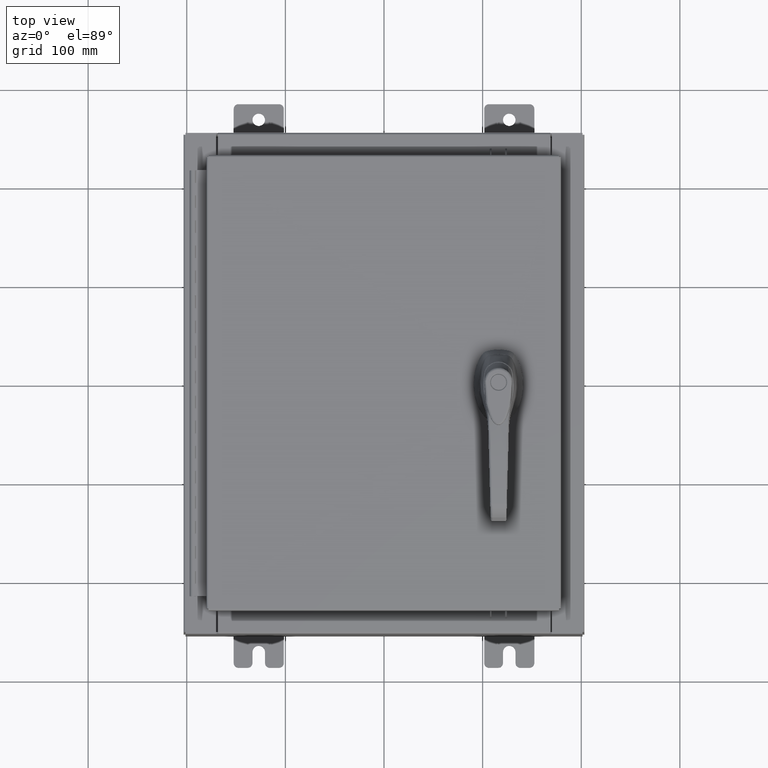
[diagram: clean part render]
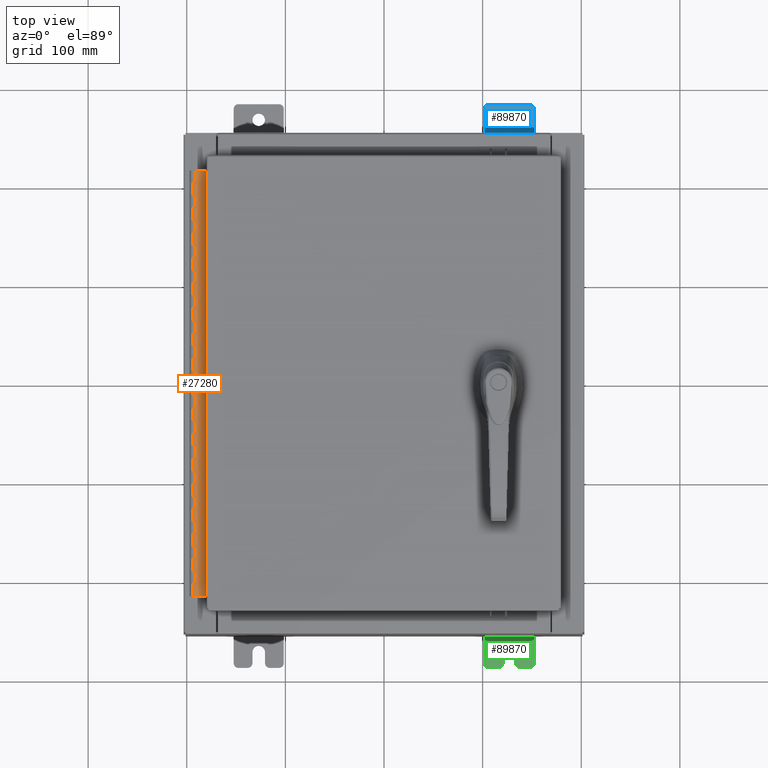
[diagram: same view with three faces highlighted in distinct colors, each labeled with its STEP entity id]
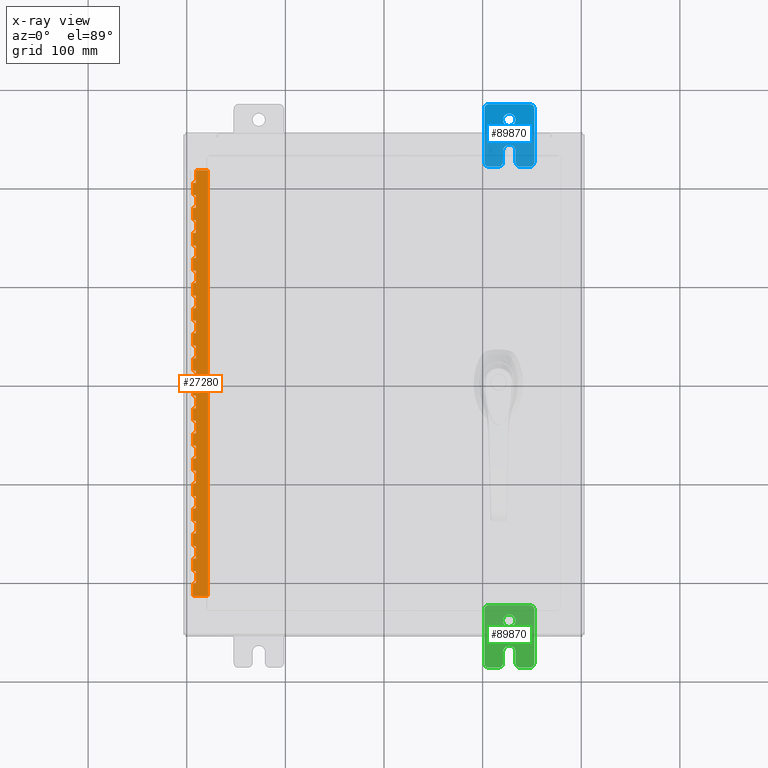
[diagram: x-ray of the same camera — body ghosted, the three highlighted faces saturated]
A machine part, top view with three faces highlighted in distinct colors.
The next image is the same camera in x-ray (body ghosted, the three faces saturated) — at least one of them is partly hidden behind the body in this view.
Their STEP definitions:

[orange] entity #27280 — the highlighted planar face has unit normal (-0, -0, 1).
#22 = DIRECTION ( 'NONE',  ( 3.389037039080723100E-015, 1.000000000000000000, -0.0000000000000000000 ) ) ;
#1467 = VECTOR ( 'NONE', #58630, 39.37007874015748100 ) ;
#1508 = VECTOR ( 'NONE', #40747, 39.37007874015748100 ) ;
#1923 = VERTEX_POINT ( 'NONE', #26326 ) ;
#2183 = CARTESIAN_POINT ( 'NONE',  ( -0.6869999999999982800, 0.5504999999999997700, -17.00000000000000000 ) ) ;
#2281 = CARTESIAN_POINT ( 'NONE',  ( -0.6869999999999982800, 0.5504999999999997700, -7.000000000000000000 ) ) ;
#2341 = LINE ( 'NONE', #43131, #89386 ) ;
#2795 = DIRECTION ( 'NONE',  ( 0.0000000000000000000, -0.0000000000000000000, -1.000000000000000000 ) ) ;
#2923 = CARTESIAN_POINT ( 'NONE',  ( -0.6869999999999978300, 0.6754999999999996600, -17.00000000000000000 ) ) ;
#3153 = CARTESIAN_POINT ( 'NONE',  ( -0.6869999999999978300, 0.6754999999999996600, -17.00000000000000000 ) ) ;
#3248 = VECTOR ( 'NONE', #29178, 39.37007874015748100 ) ;
#3446 = DIRECTION ( 'NONE',  ( 0.0000000000000000000, 0.0000000000000000000, 1.000000000000000000 ) ) ;
#3702 = ORIENTED_EDGE ( 'NONE', *, *, #107867, .F. ) ;
#3858 = EDGE_CURVE ( 'NONE', #66439, #72465, #2341, .T. ) ;
#3988 = LINE ( 'NONE', #42173, #88385 ) ;
#4146 = CARTESIAN_POINT ( 'NONE',  ( -0.6869999999999978300, 0.6754999999999996600, -12.99999999999999800 ) ) ;
#4213 = CARTESIAN_POINT ( 'NONE',  ( -0.6869999999999978300, 0.6754999999999996600, -17.00000000000000000 ) ) ;
#4261 = CARTESIAN_POINT ( 'NONE',  ( -0.6869999999999982800, 0.5504999999999997700, -11.00000000000000000 ) ) ;
#4344 = ORIENTED_EDGE ( 'NONE', *, *, #98148, .F. ) ;
#4499 = VECTOR ( 'NONE', #61874, 39.37007874015748100 ) ;
#4536 = DIRECTION ( 'NONE',  ( -3.389037039080723100E-015, -1.000000000000000000, 0.0000000000000000000 ) ) ;
#4675 = VECTOR ( 'NONE', #98316, 39.37007874015748100 ) ;
#4959 = EDGE_CURVE ( 'NONE', #54239, #1923, #66843, .T. ) ;
#5647 = VECTOR ( 'NONE', #13181, 39.37007874015748100 ) ;
#5755 = VERTEX_POINT ( 'NONE', #18379 ) ;
#5802 = ORIENTED_EDGE ( 'NONE', *, *, #19788, .T. ) ;
#5942 = PLANE ( 'NONE',  #14873 ) ;
#6075 = VERTEX_POINT ( 'NONE', #42109 ) ;
#6151 = CARTESIAN_POINT ( 'NONE',  ( -0.6869999999999973900, 0.8004999999999995500, -16.00000000000000000 ) ) ;
#6636 = CARTESIAN_POINT ( 'NONE',  ( -0.6869999999999982800, 0.5504999999999997700, -4.500000000000000000 ) ) ;
#6698 = DIRECTION ( 'NONE',  ( 0.0000000000000000000, -0.0000000000000000000, -1.000000000000000000 ) ) ;
#6910 = EDGE_CURVE ( 'NONE', #8079, #54239, #20339, .T. ) ;
#7227 = EDGE_CURVE ( 'NONE', #27907, #7751, #34861, .T. ) ;
#7600 = LINE ( 'NONE', #37707, #27376 ) ;
#7727 = EDGE_CURVE ( 'NONE', #109389, #94096, #95491, .T. ) ;
#7751 = VERTEX_POINT ( 'NONE', #11234 ) ;
#7812 = CARTESIAN_POINT ( 'NONE',  ( -0.6869999999999973900, 0.8004999999999995500, -11.00000000000000000 ) ) ;
#7901 = VERTEX_POINT ( 'NONE', #53114 ) ;
#8079 = VERTEX_POINT ( 'NONE', #86668 ) ;
#8229 = ORIENTED_EDGE ( 'NONE', *, *, #15099, .F. ) ;
#8323 = LINE ( 'NONE', #65862, #28103 ) ;
#8341 = ORIENTED_EDGE ( 'NONE', *, *, #80415, .F. ) ;
#8385 = VERTEX_POINT ( 'NONE', #22408 ) ;
#8620 = VECTOR ( 'NONE', #43862, 39.37007874015748100 ) ;
#8939 = ORIENTED_EDGE ( 'NONE', *, *, #51447, .F. ) ;
#9289 = VERTEX_POINT ( 'NONE', #83725 ) ;
#9419 = DIRECTION ( 'NONE',  ( -3.389037039080723100E-015, -1.000000000000000000, 0.0000000000000000000 ) ) ;
#9420 = DIRECTION ( 'NONE',  ( -3.389037039080723100E-015, -1.000000000000000000, 0.0000000000000000000 ) ) ;
#9630 = EDGE_LOOP ( 'NONE', ( #9869, #95559, #93159, #10563, #42568, #46559, #55561, #84046, #87900, #102143, #107565, #3702, #10693, #74403, #53186, #95695, #17247, #25351, #96659, #13266, #66756, #90434, #43970, #48026, #36883, #55388, #102032, #13516, #81105, #106861, #30527, #76812, #83145, #94410, #70584, #4344, #5802, #90648, #8341, #17470, #83411, #41369, #87000, #13257, #56865, #108119, #74518, #47964, #93968, #33383, #88187, #8229, #42406, #18627, #105447, #89490, #102931, #62056, #45929, #29525, #90118, #48926, #78182, #8939, #30544, #67402, #21150, #82921, #89392, #35527 ) ) ;
#9869 = ORIENTED_EDGE ( 'NONE', *, *, #47329, .F. ) ;
#9891 = CARTESIAN_POINT ( 'NONE',  ( -0.6869999999999978300, 0.6754999999999996600, -17.00000000000000000 ) ) ;
#10216 = VERTEX_POINT ( 'NONE', #31728 ) ;
#10563 = ORIENTED_EDGE ( 'NONE', *, *, #35906, .F. ) ;
#10693 = ORIENTED_EDGE ( 'NONE', *, *, #75732, .T. ) ;
#10837 = VERTEX_POINT ( 'NONE', #82498 ) ;
#10955 = VERTEX_POINT ( 'NONE', #33421 ) ;
#11234 = CARTESIAN_POINT ( 'NONE',  ( -0.6869999999999978300, 0.6754999999999996600, -11.00000000000000000 ) ) ;
#11332 = DIRECTION ( 'NONE',  ( 0.0000000000000000000, -0.0000000000000000000, -1.000000000000000000 ) ) ;
#11812 = VERTEX_POINT ( 'NONE', #98662 ) ;
#11922 = VECTOR ( 'NONE', #95429, 39.37007874015748100 ) ;
#12236 = CARTESIAN_POINT ( 'NONE',  ( -0.6869999999999978300, 0.6754999999999996600, -17.00000000000000000 ) ) ;
#12653 = VECTOR ( 'NONE', #72708, 39.37007874015748100 ) ;
#13111 = DIRECTION ( 'NONE',  ( 3.389037039080723100E-015, 1.000000000000000000, -0.0000000000000000000 ) ) ;
#13181 = DIRECTION ( 'NONE',  ( 0.0000000000000000000, -0.0000000000000000000, -1.000000000000000000 ) ) ;
#13257 = ORIENTED_EDGE ( 'NONE', *, *, #50982, .F. ) ;
#13266 = ORIENTED_EDGE ( 'NONE', *, *, #30433, .F. ) ;
#13408 = VERTEX_POINT ( 'NONE', #91599 ) ;
#13516 = ORIENTED_EDGE ( 'NONE', *, *, #52260, .F. ) ;
#13846 = CARTESIAN_POINT ( 'NONE',  ( -0.6869999999999973900, 0.8004999999999995500, -9.500000000000000000 ) ) ;
#14342 = DIRECTION ( 'NONE',  ( 1.000000000000000000, -3.369016658928398200E-015, 0.0000000000000000000 ) ) ;
#14510 = VECTOR ( 'NONE', #47814, 39.37007874015748100 ) ;
#14519 = DIRECTION ( 'NONE',  ( 0.0000000000000000000, -0.0000000000000000000, -1.000000000000000000 ) ) ;
#14576 = EDGE_CURVE ( 'NONE', #76038, #33332, #75100, .T. ) ;
#14596 = VECTOR ( 'NONE', #86925, 39.37007874015748100 ) ;
#14694 = VECTOR ( 'NONE', #66771, 39.37007874015748100 ) ;
#14737 = VERTEX_POINT ( 'NONE', #37206 ) ;
#14873 = AXIS2_PLACEMENT_3D ( 'NONE', #56381, #14342, #73391 ) ;
#15099 = EDGE_CURVE ( 'NONE', #91440, #92684, #90825, .T. ) ;
#15115 = CARTESIAN_POINT ( 'NONE',  ( -0.6869999999999978300, 0.6754999999999996600, -11.99999999999999800 ) ) ;
#15487 = VERTEX_POINT ( 'NONE', #2281 ) ;
#15754 = VECTOR ( 'NONE', #45562, 39.37007874015748100 ) ;
#16158 = EDGE_CURVE ( 'NONE', #81429, #97583, #20774, .T. ) ;
#16535 = EDGE_CURVE ( 'NONE', #27907, #94929, #7600, .T. ) ;
#16628 = DIRECTION ( 'NONE',  ( 3.389037039080723100E-015, 1.000000000000000000, -0.0000000000000000000 ) ) ;
#16635 = EDGE_CURVE ( 'NONE', #66291, #44385, #22069, .T. ) ;
#16724 = LINE ( 'NONE', #87823, #64212 ) ;
#17247 = ORIENTED_EDGE ( 'NONE', *, *, #45804, .T. ) ;
#17406 = LINE ( 'NONE', #38414, #29237 ) ;
#17470 = ORIENTED_EDGE ( 'NONE', *, *, #72832, .F. ) ;
#18379 = CARTESIAN_POINT ( 'NONE',  ( -0.6869999999999982800, 0.5504999999999997700, -5.000000000000000000 ) ) ;
#18466 = LINE ( 'NONE', #42922, #105550 ) ;
#18627 = ORIENTED_EDGE ( 'NONE', *, *, #43406, .F. ) ;
#18842 = EDGE_CURVE ( 'NONE', #24737, #64905, #85183, .T. ) ;
#19032 = VERTEX_POINT ( 'NONE', #4146 ) ;
#19346 = VECTOR ( 'NONE', #85685, 39.37007874015748100 ) ;
#19403 = CARTESIAN_POINT ( 'NONE',  ( -0.6869999999999982800, 0.5504999999999997700, -3.500000000000000000 ) ) ;
#19558 = VECTOR ( 'NONE', #14519, 39.37007874015748100 ) ;
#19788 = EDGE_CURVE ( 'NONE', #69295, #49501, #75872, .T. ) ;
#20023 = CARTESIAN_POINT ( 'NONE',  ( -0.6869999999999982800, 0.5504999999999997700, -13.50000000000000000 ) ) ;
#20256 = VECTOR ( 'NONE', #79105, 39.37007874015748100 ) ;
#20339 = LINE ( 'NONE', #25064, #107437 ) ;
#20375 = DIRECTION ( 'NONE',  ( 0.0000000000000000000, -0.0000000000000000000, -1.000000000000000000 ) ) ;
#20423 = EDGE_CURVE ( 'NONE', #66291, #10216, #8323, .T. ) ;
#20724 = CARTESIAN_POINT ( 'NONE',  ( -0.6869999999999973900, 0.8004999999999995500, -5.000000000000000000 ) ) ;
#20774 = LINE ( 'NONE', #39995, #62990 ) ;
#20981 = EDGE_CURVE ( 'NONE', #64905, #49732, #68948, .T. ) ;
#20991 = LINE ( 'NONE', #13846, #108098 ) ;
#21024 = CARTESIAN_POINT ( 'NONE',  ( -0.6869999999999982800, 0.5504999999999997700, -14.99999999999999800 ) ) ;
#21150 = ORIENTED_EDGE ( 'NONE', *, *, #80109, .F. ) ;
#21261 = VECTOR ( 'NONE', #11332, 39.37007874015748100 ) ;
#21612 = CARTESIAN_POINT ( 'NONE',  ( -0.6869999999999973900, 0.8004999999999995500, -7.000000000000000000 ) ) ;
#22069 = LINE ( 'NONE', #4213, #86761 ) ;
#22408 = CARTESIAN_POINT ( 'NONE',  ( -0.6869999999999978300, 0.6754999999999996600, -3.500000000000000000 ) ) ;
#22411 = EDGE_CURVE ( 'NONE', #5755, #83291, #107035, .T. ) ;
#22518 = CARTESIAN_POINT ( 'NONE',  ( -0.6869999999999978300, 0.6754999999999996600, -17.00000000000000000 ) ) ;
#22828 = EDGE_CURVE ( 'NONE', #94096, #11812, #68737, .T. ) ;
#23023 = LINE ( 'NONE', #68394, #75869 ) ;
#23135 = CARTESIAN_POINT ( 'NONE',  ( -0.6869999999999982800, 0.5504999999999997700, -9.000000000000000000 ) ) ;
#23345 = EDGE_CURVE ( 'NONE', #49726, #25065, #101652, .T. ) ;
#23447 = VERTEX_POINT ( 'NONE', #33097 ) ;
#23838 = EDGE_CURVE ( 'NONE', #36083, #23447, #100262, .T. ) ;
#24515 = EDGE_CURVE ( 'NONE', #41715, #83149, #93607, .T. ) ;
#24737 = VERTEX_POINT ( 'NONE', #20023 ) ;
#25064 = CARTESIAN_POINT ( 'NONE',  ( -0.6869999999999973900, 0.8004999999999995500, -15.50000000000000000 ) ) ;
#25065 = VERTEX_POINT ( 'NONE', #90039 ) ;
#25262 = DIRECTION ( 'NONE',  ( 0.0000000000000000000, 0.0000000000000000000, 1.000000000000000000 ) ) ;
#25351 = ORIENTED_EDGE ( 'NONE', *, *, #97482, .F. ) ;
#25667 = LINE ( 'NONE', #104781, #3248 ) ;
#26093 = DIRECTION ( 'NONE',  ( -3.389037039080723100E-015, -1.000000000000000000, 0.0000000000000000000 ) ) ;
#26139 = VERTEX_POINT ( 'NONE', #45223 ) ;
#26307 = CARTESIAN_POINT ( 'NONE',  ( -0.6869999999999982800, 0.5504999999999997700, -15.50000000000000000 ) ) ;
#26326 = CARTESIAN_POINT ( 'NONE',  ( -0.6869999999999982800, 0.5504999999999997700, -16.00000000000000000 ) ) ;
#26518 = CARTESIAN_POINT ( 'NONE',  ( -0.6869999999999978300, 0.6754999999999996600, -2.999999999999999600 ) ) ;
#26945 = DIRECTION ( 'NONE',  ( 3.389037039080723100E-015, 1.000000000000000000, -0.0000000000000000000 ) ) ;
#27280 = ADVANCED_FACE ( 'NONE', ( #95925 ), #5942, .T. ) ;
#27343 = VERTEX_POINT ( 'NONE', #48617 ) ;
#27376 = VECTOR ( 'NONE', #96730, 39.37007874015748100 ) ;
#27499 = VERTEX_POINT ( 'NONE', #26518 ) ;
#27789 = VECTOR ( 'NONE', #20375, 39.37007874015748100 ) ;
#27907 = VERTEX_POINT ( 'NONE', #85851 ) ;
#28103 = VECTOR ( 'NONE', #82866, 39.37007874015748100 ) ;
#28375 = VERTEX_POINT ( 'NONE', #81608 ) ;
#29027 = CARTESIAN_POINT ( 'NONE',  ( -0.6869999999999978300, 0.6754999999999996600, -1.499999999999999800 ) ) ;
#29178 = DIRECTION ( 'NONE',  ( 0.0000000000000000000, 0.0000000000000000000, 1.000000000000000000 ) ) ;
#29237 = VECTOR ( 'NONE', #4536, 39.37007874015748100 ) ;
#29288 = CARTESIAN_POINT ( 'NONE',  ( -0.6869999999999982800, 0.5504999999999997700, -4.500000000000000000 ) ) ;
#29438 = LINE ( 'NONE', #19403, #74327 ) ;
#29525 = ORIENTED_EDGE ( 'NONE', *, *, #20423, .F. ) ;
#30270 = LINE ( 'NONE', #21612, #72511 ) ;
#30309 = DIRECTION ( 'NONE',  ( 0.0000000000000000000, 0.0000000000000000000, 1.000000000000000000 ) ) ;
#30433 = EDGE_CURVE ( 'NONE', #13408, #49726, #23023, .T. ) ;
#30527 = ORIENTED_EDGE ( 'NONE', *, *, #7727, .F. ) ;
#30544 = ORIENTED_EDGE ( 'NONE', *, *, #87911, .T. ) ;
#30860 = DIRECTION ( 'NONE',  ( -3.389037039080723100E-015, -1.000000000000000000, 0.0000000000000000000 ) ) ;
#30910 = CARTESIAN_POINT ( 'NONE',  ( -0.6869999999999982800, 0.5504999999999997700, -12.49999999999999800 ) ) ;
#31267 = DIRECTION ( 'NONE',  ( 0.0000000000000000000, 0.0000000000000000000, 1.000000000000000000 ) ) ;
#31320 = LINE ( 'NONE', #92548, #73563 ) ;
#31728 = CARTESIAN_POINT ( 'NONE',  ( -0.6869999999999982800, 0.5504999999999997700, -2.500000000000000000 ) ) ;
#31748 = VECTOR ( 'NONE', #84004, 39.37007874015748100 ) ;
#32632 = CARTESIAN_POINT ( 'NONE',  ( -0.6869999999999978300, 0.6754999999999996600, -9.000000000000000000 ) ) ;
#32951 = CARTESIAN_POINT ( 'NONE',  ( -0.6869999999999982800, 0.5504999999999997700, -13.50000000000000000 ) ) ;
#33097 = CARTESIAN_POINT ( 'NONE',  ( -0.6869999999999982800, 0.5504999999999997700, -0.5000000000000000000 ) ) ;
#33332 = VERTEX_POINT ( 'NONE', #32632 ) ;
#33383 = ORIENTED_EDGE ( 'NONE', *, *, #22411, .F. ) ;
#33421 = CARTESIAN_POINT ( 'NONE',  ( -0.6869999999999982800, 0.5504999999999997700, -14.49999999999999800 ) ) ;
#33424 = DIRECTION ( 'NONE',  ( 0.0000000000000000000, 0.0000000000000000000, 1.000000000000000000 ) ) ;
#33519 = EDGE_CURVE ( 'NONE', #94929, #93644, #83058, .T. ) ;
#33598 = DIRECTION ( 'NONE',  ( 3.389037039080723100E-015, 1.000000000000000000, -0.0000000000000000000 ) ) ;
#34011 = DIRECTION ( 'NONE',  ( 0.0000000000000000000, -0.0000000000000000000, -1.000000000000000000 ) ) ;
#34411 = CARTESIAN_POINT ( 'NONE',  ( -0.6870000000000022800, -0.6245000000000003900, -17.00000000000000000 ) ) ;
#34549 = VECTOR ( 'NONE', #3446, 39.37007874015748100 ) ;
#34568 = CARTESIAN_POINT ( 'NONE',  ( -0.6869999999999982800, 0.5504999999999997700, -11.99999999999999800 ) ) ;
#34849 = EDGE_CURVE ( 'NONE', #26139, #76038, #86893, .T. ) ;
#34861 = LINE ( 'NONE', #2923, #4499 ) ;
#34951 = DIRECTION ( 'NONE',  ( 0.0000000000000000000, -0.0000000000000000000, -1.000000000000000000 ) ) ;
#35527 = ORIENTED_EDGE ( 'NONE', *, *, #16158, .F. ) ;
#35594 = CARTESIAN_POINT ( 'NONE',  ( -0.6869999999999973900, 0.8004999999999995500, -1.499999999999999800 ) ) ;
#35906 = EDGE_CURVE ( 'NONE', #43221, #38966, #106541, .T. ) ;
#36083 = VERTEX_POINT ( 'NONE', #61083 ) ;
#36374 = CARTESIAN_POINT ( 'NONE',  ( -0.6869999999999978300, 0.6754999999999996600, -2.000000000000000000 ) ) ;
#36622 = DIRECTION ( 'NONE',  ( 0.0000000000000000000, -0.0000000000000000000, -1.000000000000000000 ) ) ;
#36883 = ORIENTED_EDGE ( 'NONE', *, *, #7227, .T. ) ;
#37057 = LINE ( 'NONE', #103871, #14596 ) ;
#37206 = CARTESIAN_POINT ( 'NONE',  ( -0.6869999999999978300, 0.6754999999999996600, -9.500000000000000000 ) ) ;
#37292 = DIRECTION ( 'NONE',  ( -3.389037039080723100E-015, -1.000000000000000000, 0.0000000000000000000 ) ) ;
#37637 = VERTEX_POINT ( 'NONE', #91124 ) ;
#37686 = CARTESIAN_POINT ( 'NONE',  ( -0.6869999999999982800, 0.5504999999999997700, -2.500000000000000000 ) ) ;
#37707 = CARTESIAN_POINT ( 'NONE',  ( -0.6869999999999973900, 0.8004999999999995500, -11.50000000000000000 ) ) ;
#37798 = LINE ( 'NONE', #106270, #57577 ) ;
#38185 = LINE ( 'NONE', #87655, #15754 ) ;
#38264 = CARTESIAN_POINT ( 'NONE',  ( -0.6869999999999982800, 0.5504999999999997700, -1.499999999999999800 ) ) ;
#38414 = CARTESIAN_POINT ( 'NONE',  ( -0.6869999999999973900, 0.8004999999999995500, -13.50000000000000000 ) ) ;
#38425 = CARTESIAN_POINT ( 'NONE',  ( -0.6869999999999978300, 0.6754999999999996600, -16.50000000000000000 ) ) ;
#38488 = EDGE_CURVE ( 'NONE', #1923, #52935, #71958, .T. ) ;
#38966 = VERTEX_POINT ( 'NONE', #63870 ) ;
#39304 = DIRECTION ( 'NONE',  ( -3.389037039080723100E-015, -1.000000000000000000, 0.0000000000000000000 ) ) ;
#39637 = VECTOR ( 'NONE', #81805, 39.37007874015748100 ) ;
#39746 = CARTESIAN_POINT ( 'NONE',  ( -0.6869999999999973900, 0.8004999999999995500, -0.5000000000000000000 ) ) ;
#39958 = EDGE_CURVE ( 'NONE', #108818, #27499, #79682, .T. ) ;
#39995 = CARTESIAN_POINT ( 'NONE',  ( -0.6870000000000022800, -0.6245000000000003900, 0.0000000000000000000 ) ) ;
#40747 = DIRECTION ( 'NONE',  ( 0.0000000000000000000, -0.0000000000000000000, -1.000000000000000000 ) ) ;
#40802 = CARTESIAN_POINT ( 'NONE',  ( -0.6869999999999978300, 0.6754999999999996600, -5.500000000000000000 ) ) ;
#41369 = ORIENTED_EDGE ( 'NONE', *, *, #49128, .F. ) ;
#41637 = EDGE_CURVE ( 'NONE', #27343, #74464, #70288, .T. ) ;
#41715 = VERTEX_POINT ( 'NONE', #47076 ) ;
#42109 = CARTESIAN_POINT ( 'NONE',  ( -0.6869999999999982800, 0.5504999999999997700, -6.499999999999999100 ) ) ;
#42173 = CARTESIAN_POINT ( 'NONE',  ( -0.6869999999999978300, 0.6754999999999996600, -17.00000000000000000 ) ) ;
#42355 = VERTEX_POINT ( 'NONE', #68383 ) ;
#42406 = ORIENTED_EDGE ( 'NONE', *, *, #105096, .T. ) ;
#42459 = CARTESIAN_POINT ( 'NONE',  ( -0.6869999999999982800, 0.5504999999999997700, -7.499999999999999100 ) ) ;
#42568 = ORIENTED_EDGE ( 'NONE', *, *, #107738, .T. ) ;
#42922 = CARTESIAN_POINT ( 'NONE',  ( -0.6869999999999973900, 0.8004999999999995500, -14.49999999999999800 ) ) ;
#43118 = DIRECTION ( 'NONE',  ( 0.0000000000000000000, 0.0000000000000000000, 1.000000000000000000 ) ) ;
#43131 = CARTESIAN_POINT ( 'NONE',  ( -0.6869999999999973900, 0.8004999999999995500, -1.000000000000000000 ) ) ;
#43221 = VERTEX_POINT ( 'NONE', #38425 ) ;
#43276 = VECTOR ( 'NONE', #34951, 39.37007874015748100 ) ;
#43406 = EDGE_CURVE ( 'NONE', #9289, #82047, #97773, .T. ) ;
#43862 = DIRECTION ( 'NONE',  ( 0.0000000000000000000, 0.0000000000000000000, 1.000000000000000000 ) ) ;
#43970 = ORIENTED_EDGE ( 'NONE', *, *, #33519, .F. ) ;
#44097 = DIRECTION ( 'NONE',  ( 3.389037039080723100E-015, 1.000000000000000000, -0.0000000000000000000 ) ) ;
#44385 = VERTEX_POINT ( 'NONE', #36374 ) ;
#44665 = EDGE_CURVE ( 'NONE', #95091, #49501, #59344, .T. ) ;
#44824 = CARTESIAN_POINT ( 'NONE',  ( -0.6869999999999973900, 0.8004999999999995500, -6.499999999999999100 ) ) ;
#45223 = CARTESIAN_POINT ( 'NONE',  ( -0.6869999999999982800, 0.5504999999999997700, -8.500000000000000000 ) ) ;
#45502 = EDGE_CURVE ( 'NONE', #87215, #53876, #87015, .T. ) ;
#45562 = DIRECTION ( 'NONE',  ( 0.0000000000000000000, -0.0000000000000000000, -1.000000000000000000 ) ) ;
#45804 = EDGE_CURVE ( 'NONE', #53333, #19032, #71134, .T. ) ;
#45929 = ORIENTED_EDGE ( 'NONE', *, *, #107107, .F. ) ;
#46559 = ORIENTED_EDGE ( 'NONE', *, *, #38488, .F. ) ;
#47076 = CARTESIAN_POINT ( 'NONE',  ( -0.6869999999999978300, 0.6754999999999996600, -7.499999999999999100 ) ) ;
#47329 = EDGE_CURVE ( 'NONE', #104387, #81429, #70091, .T. ) ;
#47727 = EDGE_CURVE ( 'NONE', #6075, #15487, #71344, .T. ) ;
#47814 = DIRECTION ( 'NONE',  ( 0.0000000000000000000, -0.0000000000000000000, -1.000000000000000000 ) ) ;
#47905 = VECTOR ( 'NONE', #2795, 39.37007874015748100 ) ;
#47964 = ORIENTED_EDGE ( 'NONE', *, *, #93598, .F. ) ;
#48026 = ORIENTED_EDGE ( 'NONE', *, *, #16535, .F. ) ;
#48058 = CARTESIAN_POINT ( 'NONE',  ( -0.6869999999999982800, 0.5504999999999997700, -15.50000000000000000 ) ) ;
#48125 = CARTESIAN_POINT ( 'NONE',  ( -0.6869999999999978300, 0.6754999999999996600, -4.500000000000000000 ) ) ;
#48213 = DIRECTION ( 'NONE',  ( -3.389037039080723100E-015, -1.000000000000000000, 0.0000000000000000000 ) ) ;
#48579 = LINE ( 'NONE', #48645, #88197 ) ;
#48617 = CARTESIAN_POINT ( 'NONE',  ( -0.6869999999999982800, 0.5504999999999997700, -1.499999999999999800 ) ) ;
#48645 = CARTESIAN_POINT ( 'NONE',  ( -0.6869999999999982800, 0.5504999999999997700, -5.500000000000000000 ) ) ;
#48839 = VECTOR ( 'NONE', #60705, 39.37007874015748100 ) ;
#48926 = ORIENTED_EDGE ( 'NONE', *, *, #107240, .F. ) ;
#48957 = EDGE_CURVE ( 'NONE', #10955, #89663, #38185, .T. ) ;
#49128 = EDGE_CURVE ( 'NONE', #15487, #83149, #30270, .T. ) ;
#49501 = VERTEX_POINT ( 'NONE', #67657 ) ;
#49726 = VERTEX_POINT ( 'NONE', #96001 ) ;
#49732 = VERTEX_POINT ( 'NONE', #79416 ) ;
#49846 = DIRECTION ( 'NONE',  ( 0.0000000000000000000, -0.0000000000000000000, -1.000000000000000000 ) ) ;
#49850 = CARTESIAN_POINT ( 'NONE',  ( -0.6869999999999982800, 0.5504999999999997700, -6.000000000000000900 ) ) ;
#50314 = CARTESIAN_POINT ( 'NONE',  ( -0.6869999999999978300, 0.6754999999999996600, -17.00000000000000000 ) ) ;
#50785 = EDGE_CURVE ( 'NONE', #28375, #103552, #107956, .T. ) ;
#50982 = EDGE_CURVE ( 'NONE', #87215, #6075, #77631, .T. ) ;
#51447 = EDGE_CURVE ( 'NONE', #90781, #27343, #56372, .T. ) ;
#51734 = CARTESIAN_POINT ( 'NONE',  ( -0.6869999999999973900, 0.8004999999999995500, -6.000000000000000900 ) ) ;
#52260 = EDGE_CURVE ( 'NONE', #10837, #28375, #103846, .T. ) ;
#52606 = VECTOR ( 'NONE', #26945, 39.37007874015748100 ) ;
#52816 = LINE ( 'NONE', #37686, #27789 ) ;
#52935 = VERTEX_POINT ( 'NONE', #81411 ) ;
#53114 = CARTESIAN_POINT ( 'NONE',  ( -0.6869999999999982800, 0.5504999999999997700, -5.500000000000000000 ) ) ;
#53186 = ORIENTED_EDGE ( 'NONE', *, *, #18842, .F. ) ;
#53236 = CARTESIAN_POINT ( 'NONE',  ( -0.6869999999999982800, 0.5504999999999997700, -9.500000000000000000 ) ) ;
#53333 = VERTEX_POINT ( 'NONE', #60317 ) ;
#53378 = CARTESIAN_POINT ( 'NONE',  ( -0.6869999999999982800, 0.5504999999999997700, -11.50000000000000000 ) ) ;
#53876 = VERTEX_POINT ( 'NONE', #101147 ) ;
#54118 = LINE ( 'NONE', #70364, #11922 ) ;
#54141 = LINE ( 'NONE', #75525, #31748 ) ;
#54239 = VERTEX_POINT ( 'NONE', #48058 ) ;
#54734 = LINE ( 'NONE', #6636, #96989 ) ;
#55332 = CARTESIAN_POINT ( 'NONE',  ( -0.6869999999999978300, 0.6754999999999996600, -4.000000000000000000 ) ) ;
#55337 = VECTOR ( 'NONE', #48213, 39.37007874015748100 ) ;
#55388 = ORIENTED_EDGE ( 'NONE', *, *, #79794, .F. ) ;
#55561 = ORIENTED_EDGE ( 'NONE', *, *, #4959, .F. ) ;
#56244 = DIRECTION ( 'NONE',  ( -3.389037039080723100E-015, -1.000000000000000000, 0.0000000000000000000 ) ) ;
#56307 = CARTESIAN_POINT ( 'NONE',  ( -0.6869999999999998300, 0.07549999999999991400, -17.00000000000000000 ) ) ;
#56372 = LINE ( 'NONE', #35594, #98627 ) ;
#56381 = CARTESIAN_POINT ( 'NONE',  ( -0.6870000000000022800, -0.6245000000000003900, -17.00000000000000000 ) ) ;
#56560 = CARTESIAN_POINT ( 'NONE',  ( -0.6869999999999982800, 0.5504999999999997700, -8.500000000000000000 ) ) ;
#56865 = ORIENTED_EDGE ( 'NONE', *, *, #45502, .T. ) ;
#57156 = CARTESIAN_POINT ( 'NONE',  ( -0.6869999999999978300, 0.6754999999999996600, -8.500000000000000000 ) ) ;
#57222 = VECTOR ( 'NONE', #16628, 39.37007874015748100 ) ;
#57251 = CARTESIAN_POINT ( 'NONE',  ( -0.6869999999999978300, 0.6754999999999996600, -7.000000000000000000 ) ) ;
#57577 = VECTOR ( 'NONE', #72735, 39.37007874015748100 ) ;
#58292 = LINE ( 'NONE', #51734, #80752 ) ;
#58630 = DIRECTION ( 'NONE',  ( 3.389037039080723100E-015, 1.000000000000000000, -0.0000000000000000000 ) ) ;
#58852 = CARTESIAN_POINT ( 'NONE',  ( -0.6869999999999982800, 0.5504999999999997700, -3.500000000000000000 ) ) ;
#59203 = LINE ( 'NONE', #81395, #106743 ) ;
#59344 = LINE ( 'NONE', #103158, #101604 ) ;
#59509 = CARTESIAN_POINT ( 'NONE',  ( -0.6869999999999978300, 0.6754999999999996600, -17.00000000000000000 ) ) ;
#59656 = EDGE_CURVE ( 'NONE', #8079, #37637, #37798, .T. ) ;
#60180 = VECTOR ( 'NONE', #64174, 39.37007874015748100 ) ;
#60317 = CARTESIAN_POINT ( 'NONE',  ( -0.6869999999999978300, 0.6754999999999996600, -13.50000000000000000 ) ) ;
#60705 = DIRECTION ( 'NONE',  ( 0.0000000000000000000, -0.0000000000000000000, -1.000000000000000000 ) ) ;
#60831 = CARTESIAN_POINT ( 'NONE',  ( -0.6869999999999973900, 0.8004999999999995500, -9.000000000000000000 ) ) ;
#61083 = CARTESIAN_POINT ( 'NONE',  ( -0.6869999999999978300, 0.6754999999999996600, -0.5000000000000000000 ) ) ;
#61398 = CARTESIAN_POINT ( 'NONE',  ( -0.6869999999999982800, 0.5504999999999997700, -2.000000000000000000 ) ) ;
#61432 = DIRECTION ( 'NONE',  ( 0.0000000000000000000, -0.0000000000000000000, -1.000000000000000000 ) ) ;
#61708 = CARTESIAN_POINT ( 'NONE',  ( -0.6869999999999982800, 0.5504999999999997700, -11.50000000000000000 ) ) ;
#61831 = CARTESIAN_POINT ( 'NONE',  ( -0.6869999999999982800, 0.5504999999999997700, -0.5000000000000000000 ) ) ;
#61874 = DIRECTION ( 'NONE',  ( 0.0000000000000000000, 0.0000000000000000000, 1.000000000000000000 ) ) ;
#62056 = ORIENTED_EDGE ( 'NONE', *, *, #39958, .F. ) ;
#62181 = EDGE_CURVE ( 'NONE', #14737, #33332, #25667, .T. ) ;
#62990 = VECTOR ( 'NONE', #99046, 39.37007874015748100 ) ;
#63477 = LINE ( 'NONE', #61831, #21261 ) ;
#63870 = CARTESIAN_POINT ( 'NONE',  ( -0.6869999999999982800, 0.5504999999999997700, -16.50000000000000000 ) ) ;
#64067 = DIRECTION ( 'NONE',  ( 0.0000000000000000000, 0.0000000000000000000, 1.000000000000000000 ) ) ;
#64174 = DIRECTION ( 'NONE',  ( -3.389037039080723100E-015, -1.000000000000000000, 0.0000000000000000000 ) ) ;
#64212 = VECTOR ( 'NONE', #37292, 39.37007874015748100 ) ;
#64288 = VECTOR ( 'NONE', #26093, 39.37007874015748100 ) ;
#64607 = CARTESIAN_POINT ( 'NONE',  ( -0.6869999999999982800, 0.5504999999999997700, -9.500000000000000000 ) ) ;
#64667 = VECTOR ( 'NONE', #76032, 39.37007874015748100 ) ;
#64727 = LINE ( 'NONE', #73330, #39637 ) ;
#64905 = VERTEX_POINT ( 'NONE', #90212 ) ;
#65284 = DIRECTION ( 'NONE',  ( -3.389037039080723100E-015, -1.000000000000000000, 0.0000000000000000000 ) ) ;
#65295 = VECTOR ( 'NONE', #33598, 39.37007874015748100 ) ;
#65862 = CARTESIAN_POINT ( 'NONE',  ( -0.6869999999999973900, 0.8004999999999995500, -2.500000000000000000 ) ) ;
#65937 = DIRECTION ( 'NONE',  ( 0.0000000000000000000, -0.0000000000000000000, -1.000000000000000000 ) ) ;
#66276 = VECTOR ( 'NONE', #99699, 39.37007874015748100 ) ;
#66291 = VERTEX_POINT ( 'NONE', #85224 ) ;
#66439 = VERTEX_POINT ( 'NONE', #95485 ) ;
#66722 = LINE ( 'NONE', #9891, #108970 ) ;
#66756 = ORIENTED_EDGE ( 'NONE', *, *, #100376, .T. ) ;
#66771 = DIRECTION ( 'NONE',  ( 3.389037039080723100E-015, 1.000000000000000000, -0.0000000000000000000 ) ) ;
#66843 = LINE ( 'NONE', #26307, #19346 ) ;
#67152 = CARTESIAN_POINT ( 'NONE',  ( -0.6869999999999973900, 0.8004999999999995500, -2.999999999999999600 ) ) ;
#67181 = VECTOR ( 'NONE', #30309, 39.37007874015748100 ) ;
#67344 = LINE ( 'NONE', #67506, #64667 ) ;
#67402 = ORIENTED_EDGE ( 'NONE', *, *, #3858, .F. ) ;
#67413 = VECTOR ( 'NONE', #31267, 39.37007874015748100 ) ;
#67471 = CARTESIAN_POINT ( 'NONE',  ( -0.6869999999999978300, 0.6754999999999996600, -6.499999999999999100 ) ) ;
#67506 = CARTESIAN_POINT ( 'NONE',  ( -0.6869999999999973900, 0.8004999999999995500, -2.000000000000000000 ) ) ;
#67657 = CARTESIAN_POINT ( 'NONE',  ( -0.6869999999999978300, 0.6754999999999996600, -8.000000000000000000 ) ) ;
#68383 = CARTESIAN_POINT ( 'NONE',  ( -0.6869999999999978300, 0.6754999999999996600, -14.49999999999999800 ) ) ;
#68394 = CARTESIAN_POINT ( 'NONE',  ( -0.6869999999999973900, 0.8004999999999995500, -12.49999999999999800 ) ) ;
#68426 = VECTOR ( 'NONE', #71392, 39.37007874015748100 ) ;
#68737 = LINE ( 'NONE', #109191, #1467 ) ;
#68779 = LINE ( 'NONE', #82846, #1508 ) ;
#68948 = LINE ( 'NONE', #91183, #66276 ) ;
#69276 = EDGE_CURVE ( 'NONE', #7901, #96999, #48579, .T. ) ;
#69295 = VERTEX_POINT ( 'NONE', #57156 ) ;
#70091 = LINE ( 'NONE', #56307, #67413 ) ;
#70288 = LINE ( 'NONE', #38264, #5647 ) ;
#70364 = CARTESIAN_POINT ( 'NONE',  ( -0.6869999999999973900, 0.8004999999999995500, -14.99999999999999800 ) ) ;
#70435 = CARTESIAN_POINT ( 'NONE',  ( -0.6869999999999982800, 0.5504999999999997700, -7.499999999999999100 ) ) ;
#70461 = EDGE_CURVE ( 'NONE', #8385, #89193, #59203, .T. ) ;
#70584 = ORIENTED_EDGE ( 'NONE', *, *, #34849, .F. ) ;
#71134 = LINE ( 'NONE', #106141, #90878 ) ;
#71344 = LINE ( 'NONE', #94289, #48839 ) ;
#71392 = DIRECTION ( 'NONE',  ( -3.389037039080723100E-015, -1.000000000000000000, 0.0000000000000000000 ) ) ;
#71848 = CARTESIAN_POINT ( 'NONE',  ( -0.6869999999999982800, 0.5504999999999997700, -8.000000000000000000 ) ) ;
#71958 = LINE ( 'NONE', #6151, #4675 ) ;
#72465 = VERTEX_POINT ( 'NONE', #73633 ) ;
#72511 = VECTOR ( 'NONE', #13111, 39.37007874015748100 ) ;
#72708 = DIRECTION ( 'NONE',  ( 0.0000000000000000000, 0.0000000000000000000, 1.000000000000000000 ) ) ;
#72735 = DIRECTION ( 'NONE',  ( 0.0000000000000000000, 0.0000000000000000000, 1.000000000000000000 ) ) ;
#72832 = EDGE_CURVE ( 'NONE', #41715, #77530, #105059, .T. ) ;
#72864 = EDGE_CURVE ( 'NONE', #96387, #83291, #79987, .T. ) ;
#72984 = VERTEX_POINT ( 'NONE', #15115 ) ;
#73330 = CARTESIAN_POINT ( 'NONE',  ( -0.6869999999999978300, 0.6754999999999996600, -17.00000000000000000 ) ) ;
#73391 = DIRECTION ( 'NONE',  ( 3.369016658928398200E-015, 1.000000000000000000, 0.0000000000000000000 ) ) ;
#73563 = VECTOR ( 'NONE', #22, 39.37007874015748100 ) ;
#73633 = CARTESIAN_POINT ( 'NONE',  ( -0.6869999999999978300, 0.6754999999999996600, -1.000000000000000000 ) ) ;
#74327 = VECTOR ( 'NONE', #61432, 39.37007874015748100 ) ;
#74396 = VECTOR ( 'NONE', #43118, 39.37007874015748100 ) ;
#74403 = ORIENTED_EDGE ( 'NONE', *, *, #20981, .F. ) ;
#74464 = VERTEX_POINT ( 'NONE', #61398 ) ;
#74518 = ORIENTED_EDGE ( 'NONE', *, *, #69276, .F. ) ;
#74958 = VECTOR ( 'NONE', #95397, 39.37007874015748100 ) ;
#75100 = LINE ( 'NONE', #60831, #52606 ) ;
#75525 = CARTESIAN_POINT ( 'NONE',  ( -0.6869999999999973900, 0.8004999999999995500, -5.500000000000000000 ) ) ;
#75732 = EDGE_CURVE ( 'NONE', #42355, #49732, #99473, .T. ) ;
#75869 = VECTOR ( 'NONE', #9419, 39.37007874015748100 ) ;
#75872 = LINE ( 'NONE', #3153, #20256 ) ;
#75985 = DIRECTION ( 'NONE',  ( -3.389037039080723100E-015, -1.000000000000000000, 0.0000000000000000000 ) ) ;
#76032 = DIRECTION ( 'NONE',  ( 3.389037039080723100E-015, 1.000000000000000000, -0.0000000000000000000 ) ) ;
#76038 = VERTEX_POINT ( 'NONE', #23135 ) ;
#76812 = ORIENTED_EDGE ( 'NONE', *, *, #108744, .F. ) ;
#77530 = VERTEX_POINT ( 'NONE', #70435 ) ;
#77631 = LINE ( 'NONE', #44824, #74958 ) ;
#77843 = DIRECTION ( 'NONE',  ( 3.389037039080723100E-015, 1.000000000000000000, -0.0000000000000000000 ) ) ;
#78182 = ORIENTED_EDGE ( 'NONE', *, *, #41637, .F. ) ;
#79105 = DIRECTION ( 'NONE',  ( 0.0000000000000000000, 0.0000000000000000000, 1.000000000000000000 ) ) ;
#79263 = EDGE_CURVE ( 'NONE', #96999, #53876, #58292, .T. ) ;
#79392 = LINE ( 'NONE', #7812, #14694 ) ;
#79416 = CARTESIAN_POINT ( 'NONE',  ( -0.6869999999999978300, 0.6754999999999996600, -14.00000000000000000 ) ) ;
#79682 = LINE ( 'NONE', #67152, #57222 ) ;
#79794 = EDGE_CURVE ( 'NONE', #103552, #7751, #79392, .T. ) ;
#79987 = LINE ( 'NONE', #22518, #12653 ) ;
#80109 = EDGE_CURVE ( 'NONE', #23447, #66439, #63477, .T. ) ;
#80415 = EDGE_CURVE ( 'NONE', #77530, #95091, #92486, .T. ) ;
#80752 = VECTOR ( 'NONE', #102323, 39.37007874015748100 ) ;
#81032 = LINE ( 'NONE', #50314, #106101 ) ;
#81105 = ORIENTED_EDGE ( 'NONE', *, *, #93350, .T. ) ;
#81391 = VECTOR ( 'NONE', #65284, 39.37007874015748100 ) ;
#81395 = CARTESIAN_POINT ( 'NONE',  ( -0.6869999999999973900, 0.8004999999999995500, -3.500000000000000000 ) ) ;
#81411 = CARTESIAN_POINT ( 'NONE',  ( -0.6869999999999978300, 0.6754999999999996600, -16.00000000000000000 ) ) ;
#81429 = VERTEX_POINT ( 'NONE', #108669 ) ;
#81608 = CARTESIAN_POINT ( 'NONE',  ( -0.6869999999999982800, 0.5504999999999997700, -10.50000000000000000 ) ) ;
#81805 = DIRECTION ( 'NONE',  ( 0.0000000000000000000, 0.0000000000000000000, 1.000000000000000000 ) ) ;
#82047 = VERTEX_POINT ( 'NONE', #55332 ) ;
#82468 = LINE ( 'NONE', #102908, #8620 ) ;
#82498 = CARTESIAN_POINT ( 'NONE',  ( -0.6869999999999978300, 0.6754999999999996600, -10.50000000000000000 ) ) ;
#82780 = LINE ( 'NONE', #34411, #105207 ) ;
#82846 = CARTESIAN_POINT ( 'NONE',  ( -0.6869999999999982800, 0.5504999999999997700, -16.50000000000000000 ) ) ;
#82866 = DIRECTION ( 'NONE',  ( -3.389037039080723100E-015, -1.000000000000000000, 0.0000000000000000000 ) ) ;
#82921 = ORIENTED_EDGE ( 'NONE', *, *, #23838, .F. ) ;
#83032 = CARTESIAN_POINT ( 'NONE',  ( -0.6869999999999973900, 0.8004999999999995500, -4.000000000000000000 ) ) ;
#83058 = LINE ( 'NONE', #61708, #102850 ) ;
#83124 = CARTESIAN_POINT ( 'NONE',  ( -0.6869999999999982800, 0.5504999999999997700, -10.00000000000000000 ) ) ;
#83145 = ORIENTED_EDGE ( 'NONE', *, *, #62181, .T. ) ;
#83149 = VERTEX_POINT ( 'NONE', #57251 ) ;
#83291 = VERTEX_POINT ( 'NONE', #91898 ) ;
#83411 = ORIENTED_EDGE ( 'NONE', *, *, #24515, .T. ) ;
#83725 = CARTESIAN_POINT ( 'NONE',  ( -0.6869999999999982800, 0.5504999999999997700, -4.000000000000000000 ) ) ;
#84004 = DIRECTION ( 'NONE',  ( -3.389037039080723100E-015, -1.000000000000000000, 0.0000000000000000000 ) ) ;
#84046 = ORIENTED_EDGE ( 'NONE', *, *, #6910, .F. ) ;
#84626 = VECTOR ( 'NONE', #96700, 39.37007874015748100 ) ;
#84766 = EDGE_CURVE ( 'NONE', #104387, #90975, #82780, .T. ) ;
#85126 = CARTESIAN_POINT ( 'NONE',  ( -0.6869999999999973900, 0.8004999999999995500, -16.50000000000000000 ) ) ;
#85183 = LINE ( 'NONE', #32951, #104930 ) ;
#85224 = CARTESIAN_POINT ( 'NONE',  ( -0.6869999999999978300, 0.6754999999999996600, -2.500000000000000000 ) ) ;
#85488 = CARTESIAN_POINT ( 'NONE',  ( -0.6869999999999982800, 0.5504999999999997700, -10.50000000000000000 ) ) ;
#85685 = DIRECTION ( 'NONE',  ( 0.0000000000000000000, -0.0000000000000000000, -1.000000000000000000 ) ) ;
#85851 = CARTESIAN_POINT ( 'NONE',  ( -0.6869999999999978300, 0.6754999999999996600, -11.50000000000000000 ) ) ;
#85909 = EDGE_CURVE ( 'NONE', #8385, #27499, #66722, .T. ) ;
#86299 = CARTESIAN_POINT ( 'NONE',  ( -0.6869999999999978300, 0.6754999999999996600, -17.00000000000000000 ) ) ;
#86607 = EDGE_CURVE ( 'NONE', #92684, #5755, #54734, .T. ) ;
#86668 = CARTESIAN_POINT ( 'NONE',  ( -0.6869999999999978300, 0.6754999999999996600, -15.50000000000000000 ) ) ;
#86761 = VECTOR ( 'NONE', #105579, 39.37007874015748100 ) ;
#86893 = LINE ( 'NONE', #56560, #19558 ) ;
#86925 = DIRECTION ( 'NONE',  ( 0.0000000000000000000, 0.0000000000000000000, 1.000000000000000000 ) ) ;
#87000 = ORIENTED_EDGE ( 'NONE', *, *, #47727, .F. ) ;
#87015 = LINE ( 'NONE', #89303, #67181 ) ;
#87215 = VERTEX_POINT ( 'NONE', #67471 ) ;
#87655 = CARTESIAN_POINT ( 'NONE',  ( -0.6869999999999982800, 0.5504999999999997700, -14.49999999999999800 ) ) ;
#87755 = LINE ( 'NONE', #101451, #65295 ) ;
#87823 = CARTESIAN_POINT ( 'NONE',  ( -0.6869999999999973900, 0.8004999999999995500, -8.500000000000000000 ) ) ;
#87900 = ORIENTED_EDGE ( 'NONE', *, *, #59656, .T. ) ;
#87911 = EDGE_CURVE ( 'NONE', #90781, #72465, #81032, .T. ) ;
#88187 = ORIENTED_EDGE ( 'NONE', *, *, #86607, .F. ) ;
#88197 = VECTOR ( 'NONE', #6698, 39.37007874015748100 ) ;
#88385 = VECTOR ( 'NONE', #25262, 39.37007874015748100 ) ;
#89193 = VERTEX_POINT ( 'NONE', #58852 ) ;
#89303 = CARTESIAN_POINT ( 'NONE',  ( -0.6869999999999978300, 0.6754999999999996600, -17.00000000000000000 ) ) ;
#89386 = VECTOR ( 'NONE', #77843, 39.37007874015748100 ) ;
#89392 = ORIENTED_EDGE ( 'NONE', *, *, #104270, .T. ) ;
#89490 = ORIENTED_EDGE ( 'NONE', *, *, #70461, .F. ) ;
#89663 = VERTEX_POINT ( 'NONE', #21024 ) ;
#89838 = VECTOR ( 'NONE', #34011, 39.37007874015748100 ) ;
#90039 = CARTESIAN_POINT ( 'NONE',  ( -0.6869999999999982800, 0.5504999999999997700, -12.99999999999999800 ) ) ;
#90118 = ORIENTED_EDGE ( 'NONE', *, *, #16635, .T. ) ;
#90212 = CARTESIAN_POINT ( 'NONE',  ( -0.6869999999999982800, 0.5504999999999997700, -14.00000000000000000 ) ) ;
#90434 = ORIENTED_EDGE ( 'NONE', *, *, #100265, .F. ) ;
#90648 = ORIENTED_EDGE ( 'NONE', *, *, #44665, .F. ) ;
#90781 = VERTEX_POINT ( 'NONE', #29027 ) ;
#90825 = LINE ( 'NONE', #96090, #68426 ) ;
#90878 = VECTOR ( 'NONE', #64067, 39.37007874015748100 ) ;
#90916 = CARTESIAN_POINT ( 'NONE',  ( -0.6869999999999982800, 0.5504999999999997700, -2.999999999999999600 ) ) ;
#90928 = VECTOR ( 'NONE', #100841, 39.37007874015748100 ) ;
#90975 = VERTEX_POINT ( 'NONE', #2183 ) ;
#91124 = CARTESIAN_POINT ( 'NONE',  ( -0.6869999999999978300, 0.6754999999999996600, -14.99999999999999800 ) ) ;
#91183 = CARTESIAN_POINT ( 'NONE',  ( -0.6869999999999973900, 0.8004999999999995500, -14.00000000000000000 ) ) ;
#91440 = VERTEX_POINT ( 'NONE', #48125 ) ;
#91462 = EDGE_CURVE ( 'NONE', #38966, #90975, #68779, .T. ) ;
#91599 = CARTESIAN_POINT ( 'NONE',  ( -0.6869999999999978300, 0.6754999999999996600, -12.49999999999999800 ) ) ;
#91898 = CARTESIAN_POINT ( 'NONE',  ( -0.6869999999999978300, 0.6754999999999996600, -5.000000000000000000 ) ) ;
#92146 = EDGE_CURVE ( 'NONE', #89663, #37637, #54118, .T. ) ;
#92486 = LINE ( 'NONE', #42459, #89838 ) ;
#92548 = CARTESIAN_POINT ( 'NONE',  ( -0.6869999999999973900, 0.8004999999999995500, -12.99999999999999800 ) ) ;
#92684 = VERTEX_POINT ( 'NONE', #29288 ) ;
#93159 = ORIENTED_EDGE ( 'NONE', *, *, #91462, .F. ) ;
#93350 = EDGE_CURVE ( 'NONE', #10837, #11812, #64727, .T. ) ;
#93409 = DIRECTION ( 'NONE',  ( 3.369016658928398200E-015, 1.000000000000000000, 0.0000000000000000000 ) ) ;
#93598 = EDGE_CURVE ( 'NONE', #96387, #7901, #54141, .T. ) ;
#93607 = LINE ( 'NONE', #59509, #90928 ) ;
#93644 = VERTEX_POINT ( 'NONE', #34568 ) ;
#93968 = ORIENTED_EDGE ( 'NONE', *, *, #72864, .T. ) ;
#94096 = VERTEX_POINT ( 'NONE', #83124 ) ;
#94289 = CARTESIAN_POINT ( 'NONE',  ( -0.6869999999999982800, 0.5504999999999997700, -6.499999999999999100 ) ) ;
#94410 = ORIENTED_EDGE ( 'NONE', *, *, #14576, .F. ) ;
#94929 = VERTEX_POINT ( 'NONE', #53378 ) ;
#95091 = VERTEX_POINT ( 'NONE', #71848 ) ;
#95140 = VECTOR ( 'NONE', #108460, 39.37007874015748100 ) ;
#95397 = DIRECTION ( 'NONE',  ( -3.389037039080723100E-015, -1.000000000000000000, 0.0000000000000000000 ) ) ;
#95429 = DIRECTION ( 'NONE',  ( 3.389037039080723100E-015, 1.000000000000000000, -0.0000000000000000000 ) ) ;
#95485 = CARTESIAN_POINT ( 'NONE',  ( -0.6869999999999982800, 0.5504999999999997700, -1.000000000000000000 ) ) ;
#95491 = LINE ( 'NONE', #53236, #47905 ) ;
#95559 = ORIENTED_EDGE ( 'NONE', *, *, #84766, .T. ) ;
#95695 = ORIENTED_EDGE ( 'NONE', *, *, #104351, .F. ) ;
#95925 = FACE_OUTER_BOUND ( 'NONE', #9630, .T. ) ;
#96001 = CARTESIAN_POINT ( 'NONE',  ( -0.6869999999999982800, 0.5504999999999997700, -12.49999999999999800 ) ) ;
#96090 = CARTESIAN_POINT ( 'NONE',  ( -0.6869999999999973900, 0.8004999999999995500, -4.500000000000000000 ) ) ;
#96387 = VERTEX_POINT ( 'NONE', #40802 ) ;
#96659 = ORIENTED_EDGE ( 'NONE', *, *, #23345, .F. ) ;
#96700 = DIRECTION ( 'NONE',  ( 3.389037039080723100E-015, 1.000000000000000000, -0.0000000000000000000 ) ) ;
#96730 = DIRECTION ( 'NONE',  ( -3.389037039080723100E-015, -1.000000000000000000, 0.0000000000000000000 ) ) ;
#96989 = VECTOR ( 'NONE', #65937, 39.37007874015748100 ) ;
#96999 = VERTEX_POINT ( 'NONE', #49850 ) ;
#97426 = CARTESIAN_POINT ( 'NONE',  ( -0.6869999999999998300, 0.07549999999999991400, -17.00000000000000000 ) ) ;
#97482 = EDGE_CURVE ( 'NONE', #25065, #19032, #31320, .T. ) ;
#97583 = VERTEX_POINT ( 'NONE', #97682 ) ;
#97682 = CARTESIAN_POINT ( 'NONE',  ( -0.6869999999999978300, 0.6754999999999996600, 0.0000000000000000000 ) ) ;
#97773 = LINE ( 'NONE', #83032, #95140 ) ;
#98148 = EDGE_CURVE ( 'NONE', #69295, #26139, #16724, .T. ) ;
#98316 = DIRECTION ( 'NONE',  ( 3.389037039080723100E-015, 1.000000000000000000, -0.0000000000000000000 ) ) ;
#98627 = VECTOR ( 'NONE', #39304, 39.37007874015748100 ) ;
#98662 = CARTESIAN_POINT ( 'NONE',  ( -0.6869999999999978300, 0.6754999999999996600, -10.00000000000000000 ) ) ;
#98868 = CARTESIAN_POINT ( 'NONE',  ( -0.6869999999999973900, 0.8004999999999995500, -10.50000000000000000 ) ) ;
#99046 = DIRECTION ( 'NONE',  ( 3.369016658928398200E-015, 1.000000000000000000, 0.0000000000000000000 ) ) ;
#99473 = LINE ( 'NONE', #86299, #74396 ) ;
#99699 = DIRECTION ( 'NONE',  ( 3.389037039080723100E-015, 1.000000000000000000, -0.0000000000000000000 ) ) ;
#100262 = LINE ( 'NONE', #39746, #55337 ) ;
#100265 = EDGE_CURVE ( 'NONE', #93644, #72984, #87755, .T. ) ;
#100376 = EDGE_CURVE ( 'NONE', #13408, #72984, #82468, .T. ) ;
#100841 = DIRECTION ( 'NONE',  ( 0.0000000000000000000, 0.0000000000000000000, 1.000000000000000000 ) ) ;
#101147 = CARTESIAN_POINT ( 'NONE',  ( -0.6869999999999978300, 0.6754999999999996600, -6.000000000000000900 ) ) ;
#101451 = CARTESIAN_POINT ( 'NONE',  ( -0.6869999999999973900, 0.8004999999999995500, -11.99999999999999800 ) ) ;
#101604 = VECTOR ( 'NONE', #44097, 39.37007874015748100 ) ;
#101652 = LINE ( 'NONE', #30910, #14510 ) ;
#101706 = DIRECTION ( 'NONE',  ( 0.0000000000000000000, 0.0000000000000000000, 1.000000000000000000 ) ) ;
#101854 = LINE ( 'NONE', #12236, #34549 ) ;
#102032 = ORIENTED_EDGE ( 'NONE', *, *, #50785, .F. ) ;
#102143 = ORIENTED_EDGE ( 'NONE', *, *, #92146, .F. ) ;
#102323 = DIRECTION ( 'NONE',  ( 3.389037039080723100E-015, 1.000000000000000000, -0.0000000000000000000 ) ) ;
#102430 = EDGE_CURVE ( 'NONE', #89193, #9289, #29438, .T. ) ;
#102850 = VECTOR ( 'NONE', #36622, 39.37007874015748100 ) ;
#102908 = CARTESIAN_POINT ( 'NONE',  ( -0.6869999999999978300, 0.6754999999999996600, -17.00000000000000000 ) ) ;
#102931 = ORIENTED_EDGE ( 'NONE', *, *, #85909, .T. ) ;
#103158 = CARTESIAN_POINT ( 'NONE',  ( -0.6869999999999973900, 0.8004999999999995500, -8.000000000000000000 ) ) ;
#103552 = VERTEX_POINT ( 'NONE', #4261 ) ;
#103846 = LINE ( 'NONE', #98868, #81391 ) ;
#103871 = CARTESIAN_POINT ( 'NONE',  ( -0.6869999999999978300, 0.6754999999999996600, -17.00000000000000000 ) ) ;
#104270 = EDGE_CURVE ( 'NONE', #36083, #97583, #101854, .T. ) ;
#104351 = EDGE_CURVE ( 'NONE', #53333, #24737, #17406, .T. ) ;
#104387 = VERTEX_POINT ( 'NONE', #97426 ) ;
#104781 = CARTESIAN_POINT ( 'NONE',  ( -0.6869999999999978300, 0.6754999999999996600, -17.00000000000000000 ) ) ;
#104930 = VECTOR ( 'NONE', #49846, 39.37007874015748100 ) ;
#105059 = LINE ( 'NONE', #106249, #60180 ) ;
#105096 = EDGE_CURVE ( 'NONE', #91440, #82047, #37057, .T. ) ;
#105207 = VECTOR ( 'NONE', #93409, 39.37007874015748100 ) ;
#105447 = ORIENTED_EDGE ( 'NONE', *, *, #102430, .F. ) ;
#105550 = VECTOR ( 'NONE', #9420, 39.37007874015748100 ) ;
#105579 = DIRECTION ( 'NONE',  ( 0.0000000000000000000, 0.0000000000000000000, 1.000000000000000000 ) ) ;
#106101 = VECTOR ( 'NONE', #33424, 39.37007874015748100 ) ;
#106141 = CARTESIAN_POINT ( 'NONE',  ( -0.6869999999999978300, 0.6754999999999996600, -17.00000000000000000 ) ) ;
#106249 = CARTESIAN_POINT ( 'NONE',  ( -0.6869999999999973900, 0.8004999999999995500, -7.499999999999999100 ) ) ;
#106270 = CARTESIAN_POINT ( 'NONE',  ( -0.6869999999999978300, 0.6754999999999996600, -17.00000000000000000 ) ) ;
#106541 = LINE ( 'NONE', #85126, #64288 ) ;
#106743 = VECTOR ( 'NONE', #30860, 39.37007874015748100 ) ;
#106861 = ORIENTED_EDGE ( 'NONE', *, *, #22828, .F. ) ;
#107035 = LINE ( 'NONE', #20724, #84626 ) ;
#107107 = EDGE_CURVE ( 'NONE', #10216, #108818, #52816, .T. ) ;
#107240 = EDGE_CURVE ( 'NONE', #74464, #44385, #67344, .T. ) ;
#107437 = VECTOR ( 'NONE', #75985, 39.37007874015748100 ) ;
#107565 = ORIENTED_EDGE ( 'NONE', *, *, #48957, .F. ) ;
#107738 = EDGE_CURVE ( 'NONE', #43221, #52935, #3988, .T. ) ;
#107867 = EDGE_CURVE ( 'NONE', #42355, #10955, #18466, .T. ) ;
#107956 = LINE ( 'NONE', #85488, #43276 ) ;
#108098 = VECTOR ( 'NONE', #56244, 39.37007874015748100 ) ;
#108119 = ORIENTED_EDGE ( 'NONE', *, *, #79263, .F. ) ;
#108460 = DIRECTION ( 'NONE',  ( 3.389037039080723100E-015, 1.000000000000000000, -0.0000000000000000000 ) ) ;
#108669 = CARTESIAN_POINT ( 'NONE',  ( -0.6869999999999998300, 0.07549999999999991400, 0.0000000000000000000 ) ) ;
#108744 = EDGE_CURVE ( 'NONE', #14737, #109389, #20991, .T. ) ;
#108818 = VERTEX_POINT ( 'NONE', #90916 ) ;
#108970 = VECTOR ( 'NONE', #101706, 39.37007874015748100 ) ;
#109191 = CARTESIAN_POINT ( 'NONE',  ( -0.6869999999999973900, 0.8004999999999995500, -10.00000000000000000 ) ) ;
#109389 = VERTEX_POINT ( 'NONE', #64607 ) ;

[blue] entity #89870 — the highlighted planar face has unit normal (0, 0, 1).
#639 = CARTESIAN_POINT ( 'NONE',  ( 0.0000000000000000000, 1.059999999999993600, -0.8100000000000089400 ) ) ;
#1444 = EDGE_CURVE ( 'NONE', #19953, #17524, #26358, .T. ) ;
#1454 = EDGE_CURVE ( 'NONE', #67623, #19953, #65877, .T. ) ;
#1471 = VECTOR ( 'NONE', #90057, 39.37007874015748100 ) ;
#4083 = DIRECTION ( 'NONE',  ( 0.0000000000000000000, 0.0000000000000000000, -1.000000000000000000 ) ) ;
#4208 = DIRECTION ( 'NONE',  ( 6.556435184794182400E-016, 1.000000000000000000, 0.0000000000000000000 ) ) ;
#4453 = VECTOR ( 'NONE', #44909, 39.37007874015748100 ) ;
#5412 = CARTESIAN_POINT ( 'NONE',  ( 0.0000000000000000000, 1.249999999999994200, -1.000000000000010400 ) ) ;
#7375 = CARTESIAN_POINT ( 'NONE',  ( 0.0000000000000000000, 0.0000000000000000000, 0.0000000000000000000 ) ) ;
#9116 = DIRECTION ( 'NONE',  ( 0.0000000000000000000, 0.0000000000000000000, -1.000000000000000000 ) ) ;
#11964 = ORIENTED_EDGE ( 'NONE', *, *, #66813, .T. ) ;
#12407 = CARTESIAN_POINT ( 'NONE',  ( 4.039428427013647300E-016, 0.6249999999999992200, -9.783840404509077400E-018 ) ) ;
#12513 = EDGE_CURVE ( 'NONE', #28169, #62311, #26532, .T. ) ;
#14377 = CARTESIAN_POINT ( 'NONE',  ( 0.0000000000000000000, -0.6249999999999992200, 0.2500000000000005000 ) ) ;
#14893 = CARTESIAN_POINT ( 'NONE',  ( 0.0000000000000000000, 1.249999999999997300, 0.8099999999999935000 ) ) ;
#15417 = ORIENTED_EDGE ( 'NONE', *, *, #108148, .T. ) ;
#15797 = DIRECTION ( 'NONE',  ( 1.000000000000000000, 0.0000000000000000000, -0.0000000000000000000 ) ) ;
#17053 = EDGE_CURVE ( 'NONE', #62311, #81477, #45719, .T. ) ;
#17334 = CARTESIAN_POINT ( 'NONE',  ( 4.039428427013647300E-016, 0.6249999999999992200, -9.783840404509077400E-018 ) ) ;
#17378 = VECTOR ( 'NONE', #69484, 39.37007874015748100 ) ;
#17524 = VERTEX_POINT ( 'NONE', #68178 ) ;
#17639 = VERTEX_POINT ( 'NONE', #44143 ) ;
#18399 = DIRECTION ( 'NONE',  ( 0.0000000000000000000, -1.000000000000000000, 1.639108796198558100E-015 ) ) ;
#19497 = CARTESIAN_POINT ( 'NONE',  ( 0.0000000000000000000, -1.250000000000002200, 0.9999999999999992200 ) ) ;
#19953 = VERTEX_POINT ( 'NONE', #14893 ) ;
#20736 = VERTEX_POINT ( 'NONE', #95348 ) ;
#20892 = DIRECTION ( 'NONE',  ( -5.163192708025533800E-017, 0.0000000000000000000, -1.000000000000000000 ) ) ;
#22228 = DIRECTION ( 'NONE',  ( -1.000000000000000000, 6.523827964459549700E-016, 5.163192708025532000E-017 ) ) ;
#22321 = DIRECTION ( 'NONE',  ( 0.0000000000000000000, 1.639108796198553600E-015, 1.000000000000000000 ) ) ;
#23017 = CARTESIAN_POINT ( 'NONE',  ( 1.928684683526972300E-016, -1.060000000000002100, 0.2500000000000005000 ) ) ;
#24310 = ORIENTED_EDGE ( 'NONE', *, *, #46488, .T. ) ;
#24595 = CARTESIAN_POINT ( 'NONE',  ( 0.0000000000000000000, -1.250000000000004700, -0.4400000000000002200 ) ) ;
#25813 = DIRECTION ( 'NONE',  ( -5.163192708025533800E-017, 0.0000000000000000000, -1.000000000000000000 ) ) ;
#26358 = CIRCLE ( 'NONE', #53901, 0.1900000000000011100 ) ;
#26532 = LINE ( 'NONE', #56100, #1471 ) ;
#28169 = VERTEX_POINT ( 'NONE', #82826 ) ;
#29897 = VERTEX_POINT ( 'NONE', #71436 ) ;
#30804 = CARTESIAN_POINT ( 'NONE',  ( 0.0000000000000000000, 1.059999999999996300, 0.8099999999999938400 ) ) ;
#31281 = AXIS2_PLACEMENT_3D ( 'NONE', #639, #59594, #9116 ) ;
#31978 = EDGE_CURVE ( 'NONE', #29897, #65835, #58456, .T. ) ;
#32723 = DIRECTION ( 'NONE',  ( 1.000000000000000000, 0.0000000000000000000, -0.0000000000000000000 ) ) ;
#32871 = EDGE_CURVE ( 'NONE', #20736, #62210, #84995, .T. ) ;
#33312 = FACE_BOUND ( 'NONE', #38509, .T. ) ;
#37016 = AXIS2_PLACEMENT_3D ( 'NONE', #83268, #32723, #91704 ) ;
#37047 = EDGE_CURVE ( 'NONE', #52232, #28169, #56229, .T. ) ;
#37698 = DIRECTION ( 'NONE',  ( 1.000000000000000000, 0.0000000000000000000, -0.0000000000000000000 ) ) ;
#38096 = CARTESIAN_POINT ( 'NONE',  ( 0.0000000000000000000, -1.060000000000002100, 0.4400000000000016700 ) ) ;
#38509 = EDGE_LOOP ( 'NONE', ( #77943, #99297 ) ) ;
#39256 = DIRECTION ( 'NONE',  ( 0.0000000000000000000, 0.0000000000000000000, -1.000000000000000000 ) ) ;
#39862 = AXIS2_PLACEMENT_3D ( 'NONE', #38096, #97099, #46543 ) ;
#40521 = AXIS2_PLACEMENT_3D ( 'NONE', #105085, #54516, #4083 ) ;
#42726 = ORIENTED_EDGE ( 'NONE', *, *, #17053, .T. ) ;
#43447 = VECTOR ( 'NONE', #22321, 39.37007874015748100 ) ;
#43705 = EDGE_CURVE ( 'NONE', #81477, #20736, #92473, .T. ) ;
#44143 = CARTESIAN_POINT ( 'NONE',  ( 0.0000000000000000000, -1.060000000000001200, 0.9999999999999988900 ) ) ;
#44909 = DIRECTION ( 'NONE',  ( 0.0000000000000000000, -1.639108796198553600E-015, -1.000000000000000000 ) ) ;
#45719 = CIRCLE ( 'NONE', #40521, 0.1900000000000011100 ) ;
#46154 = CARTESIAN_POINT ( 'NONE',  ( 6.829619984160658000E-017, -1.250000000000003800, 0.2500000000000005000 ) ) ;
#46488 = EDGE_CURVE ( 'NONE', #62210, #67929, #84689, .T. ) ;
#46543 = DIRECTION ( 'NONE',  ( 0.0000000000000000000, 0.0000000000000000000, -1.000000000000000000 ) ) ;
#46685 = EDGE_CURVE ( 'NONE', #17639, #49042, #93886, .T. ) ;
#49042 = VERTEX_POINT ( 'NONE', #88355 ) ;
#51639 = ORIENTED_EDGE ( 'NONE', *, *, #1454, .T. ) ;
#51963 = CARTESIAN_POINT ( 'NONE',  ( 0.0000000000000000000, -1.250000000000002200, 0.9999999999999992200 ) ) ;
#52232 = VERTEX_POINT ( 'NONE', #14377 ) ;
#52465 = CARTESIAN_POINT ( 'NONE',  ( 0.0000000000000000000, -1.250000000000005600, -1.000000000000006200 ) ) ;
#52492 = AXIS2_PLACEMENT_3D ( 'NONE', #12407, #71457, #20892 ) ;
#52502 = CIRCLE ( 'NONE', #86563, 0.2499999999999999200 ) ;
#53901 = AXIS2_PLACEMENT_3D ( 'NONE', #30804, #89796, #39256 ) ;
#54516 = DIRECTION ( 'NONE',  ( 1.000000000000000000, 0.0000000000000000000, -0.0000000000000000000 ) ) ;
#56100 = CARTESIAN_POINT ( 'NONE',  ( 4.780733988912460100E-016, -0.6249999999999993300, -0.2499999999999993900 ) ) ;
#56229 = CIRCLE ( 'NONE', #88046, 0.2499999999999999200 ) ;
#58456 = CIRCLE ( 'NONE', #52492, 0.2499999999999999200 ) ;
#59594 = DIRECTION ( 'NONE',  ( 1.000000000000000000, 0.0000000000000000000, -0.0000000000000000000 ) ) ;
#60171 = CARTESIAN_POINT ( 'NONE',  ( 4.168508244714285900E-016, 0.6249999999999992200, 0.2499999999999999200 ) ) ;
#61323 = AXIS2_PLACEMENT_3D ( 'NONE', #7375, #15797, #74850 ) ;
#62096 = VECTOR ( 'NONE', #94065, 39.37007874015748100 ) ;
#62210 = VERTEX_POINT ( 'NONE', #96650 ) ;
#62311 = VERTEX_POINT ( 'NONE', #105619 ) ;
#64079 = LINE ( 'NONE', #68933, #106322 ) ;
#65835 = VERTEX_POINT ( 'NONE', #60171 ) ;
#65877 = LINE ( 'NONE', #5412, #43447 ) ;
#66813 = EDGE_CURVE ( 'NONE', #67929, #67623, #70023, .T. ) ;
#67623 = VERTEX_POINT ( 'NONE', #80542 ) ;
#67929 = VERTEX_POINT ( 'NONE', #96631 ) ;
#68178 = CARTESIAN_POINT ( 'NONE',  ( 0.0000000000000000000, 1.059999999999996500, 0.9999999999999953400 ) ) ;
#68933 = CARTESIAN_POINT ( 'NONE',  ( 0.0000000000000000000, 1.249999999999997600, 0.9999999999999951200 ) ) ;
#69484 = DIRECTION ( 'NONE',  ( 0.0000000000000000000, 1.000000000000000000, -1.639108796198558100E-015 ) ) ;
#69562 = EDGE_CURVE ( 'NONE', #65835, #29897, #52502, .T. ) ;
#70023 = CIRCLE ( 'NONE', #31281, 0.1900000000000011100 ) ;
#71436 = CARTESIAN_POINT ( 'NONE',  ( 3.910348609313009100E-016, 0.6249999999999992200, -0.2499999999999999200 ) ) ;
#71457 = DIRECTION ( 'NONE',  ( 1.000000000000000000, -0.0000000000000000000, -5.163192708025532000E-017 ) ) ;
#72774 = CARTESIAN_POINT ( 'NONE',  ( 4.780733988912460100E-016, -0.6249999999999993300, 5.858939755051854500E-017 ) ) ;
#73256 = EDGE_CURVE ( 'NONE', #17524, #17639, #64079, .T. ) ;
#73689 = ORIENTED_EDGE ( 'NONE', *, *, #75847, .T. ) ;
#74850 = DIRECTION ( 'NONE',  ( -0.0000000000000000000, 0.0000000000000000000, -1.000000000000000000 ) ) ;
#75557 = FACE_OUTER_BOUND ( 'NONE', #86055, .T. ) ;
#75847 = EDGE_CURVE ( 'NONE', #49042, #83915, #96799, .T. ) ;
#76357 = DIRECTION ( 'NONE',  ( 1.000000000000000000, -0.0000000000000000000, -5.163192708025532000E-017 ) ) ;
#77943 = ORIENTED_EDGE ( 'NONE', *, *, #31978, .F. ) ;
#78511 = ORIENTED_EDGE ( 'NONE', *, *, #12513, .T. ) ;
#78611 = ORIENTED_EDGE ( 'NONE', *, *, #43705, .T. ) ;
#80542 = CARTESIAN_POINT ( 'NONE',  ( 0.0000000000000000000, 1.249999999999994700, -0.8100000000000092700 ) ) ;
#81253 = DIRECTION ( 'NONE',  ( -6.523827964459551700E-016, -1.000000000000000000, 0.0000000000000000000 ) ) ;
#81477 = VERTEX_POINT ( 'NONE', #24595 ) ;
#82826 = CARTESIAN_POINT ( 'NONE',  ( 4.780733988912460100E-016, -0.6249999999999993300, -0.2499999999999998600 ) ) ;
#83268 = CARTESIAN_POINT ( 'NONE',  ( 0.0000000000000000000, -1.060000000000004100, -0.8100000000000050500 ) ) ;
#83915 = VERTEX_POINT ( 'NONE', #104321 ) ;
#84308 = ORIENTED_EDGE ( 'NONE', *, *, #46685, .T. ) ;
#84689 = LINE ( 'NONE', #52465, #17378 ) ;
#84995 = CIRCLE ( 'NONE', #37016, 0.1900000000000011100 ) ;
#86055 = EDGE_LOOP ( 'NONE', ( #94707, #84308, #73689, #92230, #15417, #92971, #78511, #42726, #78611, #108051, #24310, #11964, #51639, #94602 ) ) ;
#86563 = AXIS2_PLACEMENT_3D ( 'NONE', #17334, #76357, #25813 ) ;
#88046 = AXIS2_PLACEMENT_3D ( 'NONE', #72774, #22228, #81253 ) ;
#88229 = CARTESIAN_POINT ( 'NONE',  ( 0.0000000000000000000, -1.060000000000001600, 0.8099999999999978300 ) ) ;
#88355 = CARTESIAN_POINT ( 'NONE',  ( 0.0000000000000000000, -1.250000000000002400, 0.8099999999999980500 ) ) ;
#89659 = VECTOR ( 'NONE', #4208, 39.37007874015748100 ) ;
#89796 = DIRECTION ( 'NONE',  ( 1.000000000000000000, 0.0000000000000000000, -0.0000000000000000000 ) ) ;
#89870 = ADVANCED_FACE ( 'NONE', ( #33312, #75557 ), #91410, .T. ) ;
#90057 = DIRECTION ( 'NONE',  ( -6.556435184794182400E-016, -1.000000000000000000, -1.639108796198545600E-016 ) ) ;
#91410 = PLANE ( 'NONE',  #61323 ) ;
#91704 = DIRECTION ( 'NONE',  ( 0.0000000000000000000, 0.0000000000000000000, -1.000000000000000000 ) ) ;
#92230 = ORIENTED_EDGE ( 'NONE', *, *, #109297, .T. ) ;
#92293 = LINE ( 'NONE', #46154, #89659 ) ;
#92473 = LINE ( 'NONE', #51963, #62096 ) ;
#92971 = ORIENTED_EDGE ( 'NONE', *, *, #37047, .T. ) ;
#93886 = CIRCLE ( 'NONE', #102601, 0.1900000000000011100 ) ;
#94065 = DIRECTION ( 'NONE',  ( 0.0000000000000000000, -1.639108796198553600E-015, -1.000000000000000000 ) ) ;
#94602 = ORIENTED_EDGE ( 'NONE', *, *, #1444, .T. ) ;
#94707 = ORIENTED_EDGE ( 'NONE', *, *, #73256, .T. ) ;
#95348 = CARTESIAN_POINT ( 'NONE',  ( 0.0000000000000000000, -1.250000000000005300, -0.8100000000000047200 ) ) ;
#96631 = CARTESIAN_POINT ( 'NONE',  ( 0.0000000000000000000, 1.059999999999993400, -1.000000000000010000 ) ) ;
#96650 = CARTESIAN_POINT ( 'NONE',  ( 0.0000000000000000000, -1.060000000000004500, -1.000000000000006400 ) ) ;
#96714 = DIRECTION ( 'NONE',  ( 0.0000000000000000000, 0.0000000000000000000, -1.000000000000000000 ) ) ;
#96799 = LINE ( 'NONE', #19497, #4453 ) ;
#96884 = VERTEX_POINT ( 'NONE', #23017 ) ;
#97099 = DIRECTION ( 'NONE',  ( 1.000000000000000000, 0.0000000000000000000, -0.0000000000000000000 ) ) ;
#99297 = ORIENTED_EDGE ( 'NONE', *, *, #69562, .F. ) ;
#102601 = AXIS2_PLACEMENT_3D ( 'NONE', #88229, #37698, #96714 ) ;
#104321 = CARTESIAN_POINT ( 'NONE',  ( 0.0000000000000000000, -1.250000000000003100, 0.4400000000000020000 ) ) ;
#105085 = CARTESIAN_POINT ( 'NONE',  ( 0.0000000000000000000, -1.060000000000003400, -0.4400000000000005000 ) ) ;
#105619 = CARTESIAN_POINT ( 'NONE',  ( 1.928684683526964400E-016, -1.060000000000003400, -0.2499999999999994400 ) ) ;
#106322 = VECTOR ( 'NONE', #18399, 39.37007874015748100 ) ;
#106714 = CIRCLE ( 'NONE', #39862, 0.1900000000000011400 ) ;
#108051 = ORIENTED_EDGE ( 'NONE', *, *, #32871, .T. ) ;
#108148 = EDGE_CURVE ( 'NONE', #96884, #52232, #92293, .T. ) ;
#109297 = EDGE_CURVE ( 'NONE', #83915, #96884, #106714, .T. ) ;

[green] entity #89870 — the highlighted planar face has unit normal (0, 0, 1).
#639 = CARTESIAN_POINT ( 'NONE',  ( 0.0000000000000000000, 1.059999999999993600, -0.8100000000000089400 ) ) ;
#1444 = EDGE_CURVE ( 'NONE', #19953, #17524, #26358, .T. ) ;
#1454 = EDGE_CURVE ( 'NONE', #67623, #19953, #65877, .T. ) ;
#1471 = VECTOR ( 'NONE', #90057, 39.37007874015748100 ) ;
#4083 = DIRECTION ( 'NONE',  ( 0.0000000000000000000, 0.0000000000000000000, -1.000000000000000000 ) ) ;
#4208 = DIRECTION ( 'NONE',  ( 6.556435184794182400E-016, 1.000000000000000000, 0.0000000000000000000 ) ) ;
#4453 = VECTOR ( 'NONE', #44909, 39.37007874015748100 ) ;
#5412 = CARTESIAN_POINT ( 'NONE',  ( 0.0000000000000000000, 1.249999999999994200, -1.000000000000010400 ) ) ;
#7375 = CARTESIAN_POINT ( 'NONE',  ( 0.0000000000000000000, 0.0000000000000000000, 0.0000000000000000000 ) ) ;
#9116 = DIRECTION ( 'NONE',  ( 0.0000000000000000000, 0.0000000000000000000, -1.000000000000000000 ) ) ;
#11964 = ORIENTED_EDGE ( 'NONE', *, *, #66813, .T. ) ;
#12407 = CARTESIAN_POINT ( 'NONE',  ( 4.039428427013647300E-016, 0.6249999999999992200, -9.783840404509077400E-018 ) ) ;
#12513 = EDGE_CURVE ( 'NONE', #28169, #62311, #26532, .T. ) ;
#14377 = CARTESIAN_POINT ( 'NONE',  ( 0.0000000000000000000, -0.6249999999999992200, 0.2500000000000005000 ) ) ;
#14893 = CARTESIAN_POINT ( 'NONE',  ( 0.0000000000000000000, 1.249999999999997300, 0.8099999999999935000 ) ) ;
#15417 = ORIENTED_EDGE ( 'NONE', *, *, #108148, .T. ) ;
#15797 = DIRECTION ( 'NONE',  ( 1.000000000000000000, 0.0000000000000000000, -0.0000000000000000000 ) ) ;
#17053 = EDGE_CURVE ( 'NONE', #62311, #81477, #45719, .T. ) ;
#17334 = CARTESIAN_POINT ( 'NONE',  ( 4.039428427013647300E-016, 0.6249999999999992200, -9.783840404509077400E-018 ) ) ;
#17378 = VECTOR ( 'NONE', #69484, 39.37007874015748100 ) ;
#17524 = VERTEX_POINT ( 'NONE', #68178 ) ;
#17639 = VERTEX_POINT ( 'NONE', #44143 ) ;
#18399 = DIRECTION ( 'NONE',  ( 0.0000000000000000000, -1.000000000000000000, 1.639108796198558100E-015 ) ) ;
#19497 = CARTESIAN_POINT ( 'NONE',  ( 0.0000000000000000000, -1.250000000000002200, 0.9999999999999992200 ) ) ;
#19953 = VERTEX_POINT ( 'NONE', #14893 ) ;
#20736 = VERTEX_POINT ( 'NONE', #95348 ) ;
#20892 = DIRECTION ( 'NONE',  ( -5.163192708025533800E-017, 0.0000000000000000000, -1.000000000000000000 ) ) ;
#22228 = DIRECTION ( 'NONE',  ( -1.000000000000000000, 6.523827964459549700E-016, 5.163192708025532000E-017 ) ) ;
#22321 = DIRECTION ( 'NONE',  ( 0.0000000000000000000, 1.639108796198553600E-015, 1.000000000000000000 ) ) ;
#23017 = CARTESIAN_POINT ( 'NONE',  ( 1.928684683526972300E-016, -1.060000000000002100, 0.2500000000000005000 ) ) ;
#24310 = ORIENTED_EDGE ( 'NONE', *, *, #46488, .T. ) ;
#24595 = CARTESIAN_POINT ( 'NONE',  ( 0.0000000000000000000, -1.250000000000004700, -0.4400000000000002200 ) ) ;
#25813 = DIRECTION ( 'NONE',  ( -5.163192708025533800E-017, 0.0000000000000000000, -1.000000000000000000 ) ) ;
#26358 = CIRCLE ( 'NONE', #53901, 0.1900000000000011100 ) ;
#26532 = LINE ( 'NONE', #56100, #1471 ) ;
#28169 = VERTEX_POINT ( 'NONE', #82826 ) ;
#29897 = VERTEX_POINT ( 'NONE', #71436 ) ;
#30804 = CARTESIAN_POINT ( 'NONE',  ( 0.0000000000000000000, 1.059999999999996300, 0.8099999999999938400 ) ) ;
#31281 = AXIS2_PLACEMENT_3D ( 'NONE', #639, #59594, #9116 ) ;
#31978 = EDGE_CURVE ( 'NONE', #29897, #65835, #58456, .T. ) ;
#32723 = DIRECTION ( 'NONE',  ( 1.000000000000000000, 0.0000000000000000000, -0.0000000000000000000 ) ) ;
#32871 = EDGE_CURVE ( 'NONE', #20736, #62210, #84995, .T. ) ;
#33312 = FACE_BOUND ( 'NONE', #38509, .T. ) ;
#37016 = AXIS2_PLACEMENT_3D ( 'NONE', #83268, #32723, #91704 ) ;
#37047 = EDGE_CURVE ( 'NONE', #52232, #28169, #56229, .T. ) ;
#37698 = DIRECTION ( 'NONE',  ( 1.000000000000000000, 0.0000000000000000000, -0.0000000000000000000 ) ) ;
#38096 = CARTESIAN_POINT ( 'NONE',  ( 0.0000000000000000000, -1.060000000000002100, 0.4400000000000016700 ) ) ;
#38509 = EDGE_LOOP ( 'NONE', ( #77943, #99297 ) ) ;
#39256 = DIRECTION ( 'NONE',  ( 0.0000000000000000000, 0.0000000000000000000, -1.000000000000000000 ) ) ;
#39862 = AXIS2_PLACEMENT_3D ( 'NONE', #38096, #97099, #46543 ) ;
#40521 = AXIS2_PLACEMENT_3D ( 'NONE', #105085, #54516, #4083 ) ;
#42726 = ORIENTED_EDGE ( 'NONE', *, *, #17053, .T. ) ;
#43447 = VECTOR ( 'NONE', #22321, 39.37007874015748100 ) ;
#43705 = EDGE_CURVE ( 'NONE', #81477, #20736, #92473, .T. ) ;
#44143 = CARTESIAN_POINT ( 'NONE',  ( 0.0000000000000000000, -1.060000000000001200, 0.9999999999999988900 ) ) ;
#44909 = DIRECTION ( 'NONE',  ( 0.0000000000000000000, -1.639108796198553600E-015, -1.000000000000000000 ) ) ;
#45719 = CIRCLE ( 'NONE', #40521, 0.1900000000000011100 ) ;
#46154 = CARTESIAN_POINT ( 'NONE',  ( 6.829619984160658000E-017, -1.250000000000003800, 0.2500000000000005000 ) ) ;
#46488 = EDGE_CURVE ( 'NONE', #62210, #67929, #84689, .T. ) ;
#46543 = DIRECTION ( 'NONE',  ( 0.0000000000000000000, 0.0000000000000000000, -1.000000000000000000 ) ) ;
#46685 = EDGE_CURVE ( 'NONE', #17639, #49042, #93886, .T. ) ;
#49042 = VERTEX_POINT ( 'NONE', #88355 ) ;
#51639 = ORIENTED_EDGE ( 'NONE', *, *, #1454, .T. ) ;
#51963 = CARTESIAN_POINT ( 'NONE',  ( 0.0000000000000000000, -1.250000000000002200, 0.9999999999999992200 ) ) ;
#52232 = VERTEX_POINT ( 'NONE', #14377 ) ;
#52465 = CARTESIAN_POINT ( 'NONE',  ( 0.0000000000000000000, -1.250000000000005600, -1.000000000000006200 ) ) ;
#52492 = AXIS2_PLACEMENT_3D ( 'NONE', #12407, #71457, #20892 ) ;
#52502 = CIRCLE ( 'NONE', #86563, 0.2499999999999999200 ) ;
#53901 = AXIS2_PLACEMENT_3D ( 'NONE', #30804, #89796, #39256 ) ;
#54516 = DIRECTION ( 'NONE',  ( 1.000000000000000000, 0.0000000000000000000, -0.0000000000000000000 ) ) ;
#56100 = CARTESIAN_POINT ( 'NONE',  ( 4.780733988912460100E-016, -0.6249999999999993300, -0.2499999999999993900 ) ) ;
#56229 = CIRCLE ( 'NONE', #88046, 0.2499999999999999200 ) ;
#58456 = CIRCLE ( 'NONE', #52492, 0.2499999999999999200 ) ;
#59594 = DIRECTION ( 'NONE',  ( 1.000000000000000000, 0.0000000000000000000, -0.0000000000000000000 ) ) ;
#60171 = CARTESIAN_POINT ( 'NONE',  ( 4.168508244714285900E-016, 0.6249999999999992200, 0.2499999999999999200 ) ) ;
#61323 = AXIS2_PLACEMENT_3D ( 'NONE', #7375, #15797, #74850 ) ;
#62096 = VECTOR ( 'NONE', #94065, 39.37007874015748100 ) ;
#62210 = VERTEX_POINT ( 'NONE', #96650 ) ;
#62311 = VERTEX_POINT ( 'NONE', #105619 ) ;
#64079 = LINE ( 'NONE', #68933, #106322 ) ;
#65835 = VERTEX_POINT ( 'NONE', #60171 ) ;
#65877 = LINE ( 'NONE', #5412, #43447 ) ;
#66813 = EDGE_CURVE ( 'NONE', #67929, #67623, #70023, .T. ) ;
#67623 = VERTEX_POINT ( 'NONE', #80542 ) ;
#67929 = VERTEX_POINT ( 'NONE', #96631 ) ;
#68178 = CARTESIAN_POINT ( 'NONE',  ( 0.0000000000000000000, 1.059999999999996500, 0.9999999999999953400 ) ) ;
#68933 = CARTESIAN_POINT ( 'NONE',  ( 0.0000000000000000000, 1.249999999999997600, 0.9999999999999951200 ) ) ;
#69484 = DIRECTION ( 'NONE',  ( 0.0000000000000000000, 1.000000000000000000, -1.639108796198558100E-015 ) ) ;
#69562 = EDGE_CURVE ( 'NONE', #65835, #29897, #52502, .T. ) ;
#70023 = CIRCLE ( 'NONE', #31281, 0.1900000000000011100 ) ;
#71436 = CARTESIAN_POINT ( 'NONE',  ( 3.910348609313009100E-016, 0.6249999999999992200, -0.2499999999999999200 ) ) ;
#71457 = DIRECTION ( 'NONE',  ( 1.000000000000000000, -0.0000000000000000000, -5.163192708025532000E-017 ) ) ;
#72774 = CARTESIAN_POINT ( 'NONE',  ( 4.780733988912460100E-016, -0.6249999999999993300, 5.858939755051854500E-017 ) ) ;
#73256 = EDGE_CURVE ( 'NONE', #17524, #17639, #64079, .T. ) ;
#73689 = ORIENTED_EDGE ( 'NONE', *, *, #75847, .T. ) ;
#74850 = DIRECTION ( 'NONE',  ( -0.0000000000000000000, 0.0000000000000000000, -1.000000000000000000 ) ) ;
#75557 = FACE_OUTER_BOUND ( 'NONE', #86055, .T. ) ;
#75847 = EDGE_CURVE ( 'NONE', #49042, #83915, #96799, .T. ) ;
#76357 = DIRECTION ( 'NONE',  ( 1.000000000000000000, -0.0000000000000000000, -5.163192708025532000E-017 ) ) ;
#77943 = ORIENTED_EDGE ( 'NONE', *, *, #31978, .F. ) ;
#78511 = ORIENTED_EDGE ( 'NONE', *, *, #12513, .T. ) ;
#78611 = ORIENTED_EDGE ( 'NONE', *, *, #43705, .T. ) ;
#80542 = CARTESIAN_POINT ( 'NONE',  ( 0.0000000000000000000, 1.249999999999994700, -0.8100000000000092700 ) ) ;
#81253 = DIRECTION ( 'NONE',  ( -6.523827964459551700E-016, -1.000000000000000000, 0.0000000000000000000 ) ) ;
#81477 = VERTEX_POINT ( 'NONE', #24595 ) ;
#82826 = CARTESIAN_POINT ( 'NONE',  ( 4.780733988912460100E-016, -0.6249999999999993300, -0.2499999999999998600 ) ) ;
#83268 = CARTESIAN_POINT ( 'NONE',  ( 0.0000000000000000000, -1.060000000000004100, -0.8100000000000050500 ) ) ;
#83915 = VERTEX_POINT ( 'NONE', #104321 ) ;
#84308 = ORIENTED_EDGE ( 'NONE', *, *, #46685, .T. ) ;
#84689 = LINE ( 'NONE', #52465, #17378 ) ;
#84995 = CIRCLE ( 'NONE', #37016, 0.1900000000000011100 ) ;
#86055 = EDGE_LOOP ( 'NONE', ( #94707, #84308, #73689, #92230, #15417, #92971, #78511, #42726, #78611, #108051, #24310, #11964, #51639, #94602 ) ) ;
#86563 = AXIS2_PLACEMENT_3D ( 'NONE', #17334, #76357, #25813 ) ;
#88046 = AXIS2_PLACEMENT_3D ( 'NONE', #72774, #22228, #81253 ) ;
#88229 = CARTESIAN_POINT ( 'NONE',  ( 0.0000000000000000000, -1.060000000000001600, 0.8099999999999978300 ) ) ;
#88355 = CARTESIAN_POINT ( 'NONE',  ( 0.0000000000000000000, -1.250000000000002400, 0.8099999999999980500 ) ) ;
#89659 = VECTOR ( 'NONE', #4208, 39.37007874015748100 ) ;
#89796 = DIRECTION ( 'NONE',  ( 1.000000000000000000, 0.0000000000000000000, -0.0000000000000000000 ) ) ;
#89870 = ADVANCED_FACE ( 'NONE', ( #33312, #75557 ), #91410, .T. ) ;
#90057 = DIRECTION ( 'NONE',  ( -6.556435184794182400E-016, -1.000000000000000000, -1.639108796198545600E-016 ) ) ;
#91410 = PLANE ( 'NONE',  #61323 ) ;
#91704 = DIRECTION ( 'NONE',  ( 0.0000000000000000000, 0.0000000000000000000, -1.000000000000000000 ) ) ;
#92230 = ORIENTED_EDGE ( 'NONE', *, *, #109297, .T. ) ;
#92293 = LINE ( 'NONE', #46154, #89659 ) ;
#92473 = LINE ( 'NONE', #51963, #62096 ) ;
#92971 = ORIENTED_EDGE ( 'NONE', *, *, #37047, .T. ) ;
#93886 = CIRCLE ( 'NONE', #102601, 0.1900000000000011100 ) ;
#94065 = DIRECTION ( 'NONE',  ( 0.0000000000000000000, -1.639108796198553600E-015, -1.000000000000000000 ) ) ;
#94602 = ORIENTED_EDGE ( 'NONE', *, *, #1444, .T. ) ;
#94707 = ORIENTED_EDGE ( 'NONE', *, *, #73256, .T. ) ;
#95348 = CARTESIAN_POINT ( 'NONE',  ( 0.0000000000000000000, -1.250000000000005300, -0.8100000000000047200 ) ) ;
#96631 = CARTESIAN_POINT ( 'NONE',  ( 0.0000000000000000000, 1.059999999999993400, -1.000000000000010000 ) ) ;
#96650 = CARTESIAN_POINT ( 'NONE',  ( 0.0000000000000000000, -1.060000000000004500, -1.000000000000006400 ) ) ;
#96714 = DIRECTION ( 'NONE',  ( 0.0000000000000000000, 0.0000000000000000000, -1.000000000000000000 ) ) ;
#96799 = LINE ( 'NONE', #19497, #4453 ) ;
#96884 = VERTEX_POINT ( 'NONE', #23017 ) ;
#97099 = DIRECTION ( 'NONE',  ( 1.000000000000000000, 0.0000000000000000000, -0.0000000000000000000 ) ) ;
#99297 = ORIENTED_EDGE ( 'NONE', *, *, #69562, .F. ) ;
#102601 = AXIS2_PLACEMENT_3D ( 'NONE', #88229, #37698, #96714 ) ;
#104321 = CARTESIAN_POINT ( 'NONE',  ( 0.0000000000000000000, -1.250000000000003100, 0.4400000000000020000 ) ) ;
#105085 = CARTESIAN_POINT ( 'NONE',  ( 0.0000000000000000000, -1.060000000000003400, -0.4400000000000005000 ) ) ;
#105619 = CARTESIAN_POINT ( 'NONE',  ( 1.928684683526964400E-016, -1.060000000000003400, -0.2499999999999994400 ) ) ;
#106322 = VECTOR ( 'NONE', #18399, 39.37007874015748100 ) ;
#106714 = CIRCLE ( 'NONE', #39862, 0.1900000000000011400 ) ;
#108051 = ORIENTED_EDGE ( 'NONE', *, *, #32871, .T. ) ;
#108148 = EDGE_CURVE ( 'NONE', #96884, #52232, #92293, .T. ) ;
#109297 = EDGE_CURVE ( 'NONE', #83915, #96884, #106714, .T. ) ;